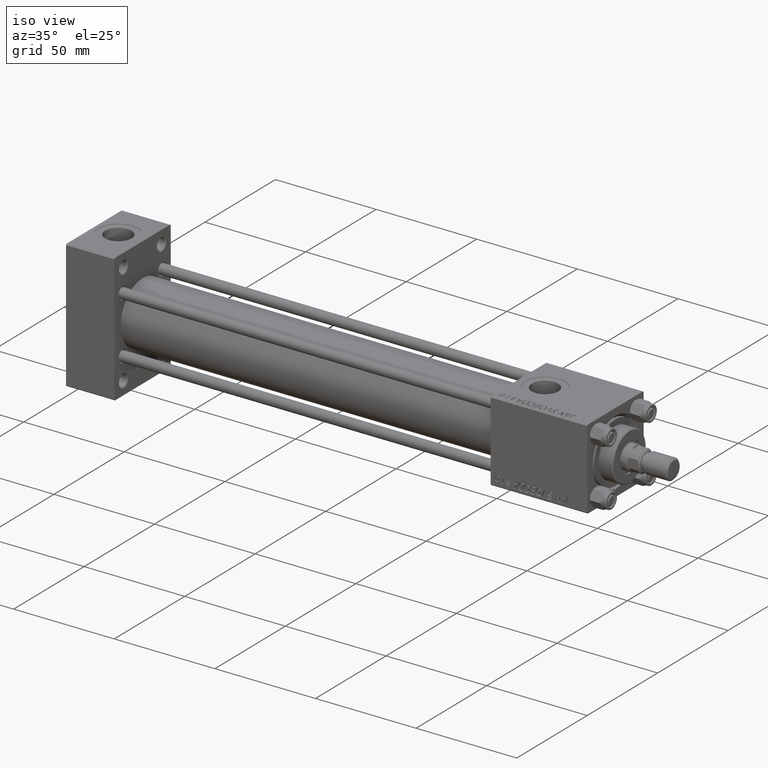
[diagram: clean part render]
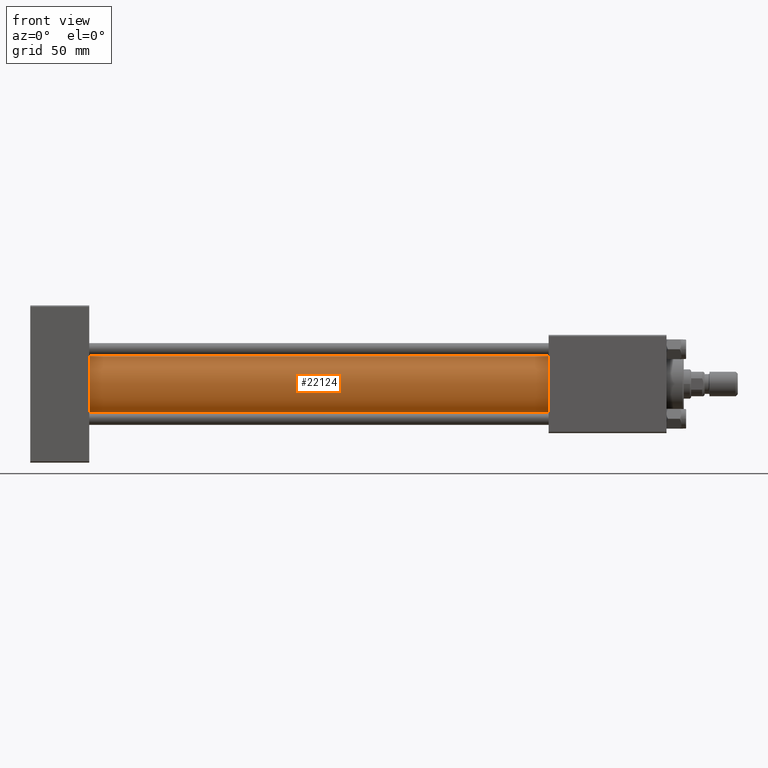
[diagram: tour spotlight — one face highlighted and labeled with its STEP entity id]
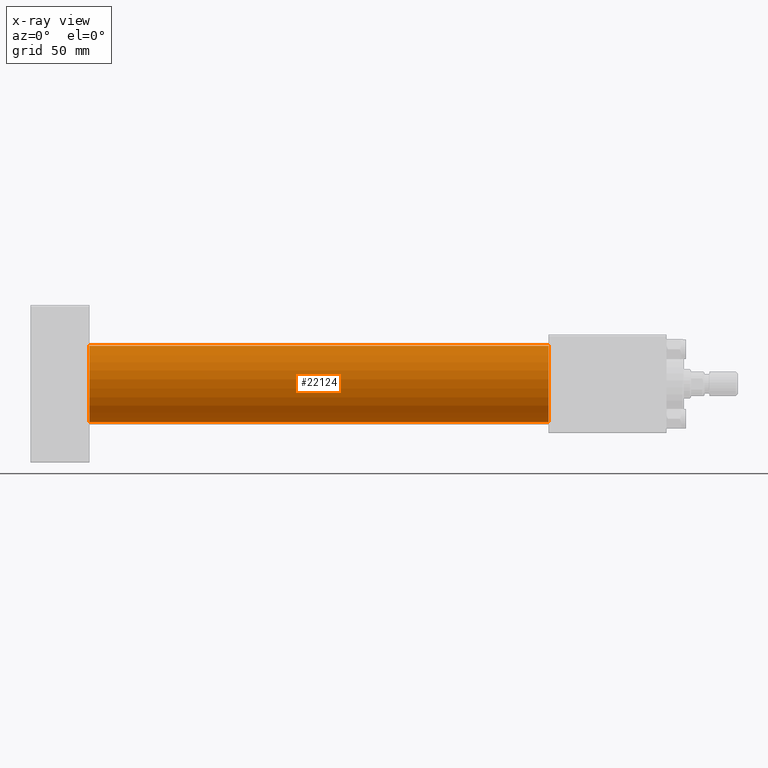
[diagram: x-ray of the same camera — body ghosted, this tour face saturated]
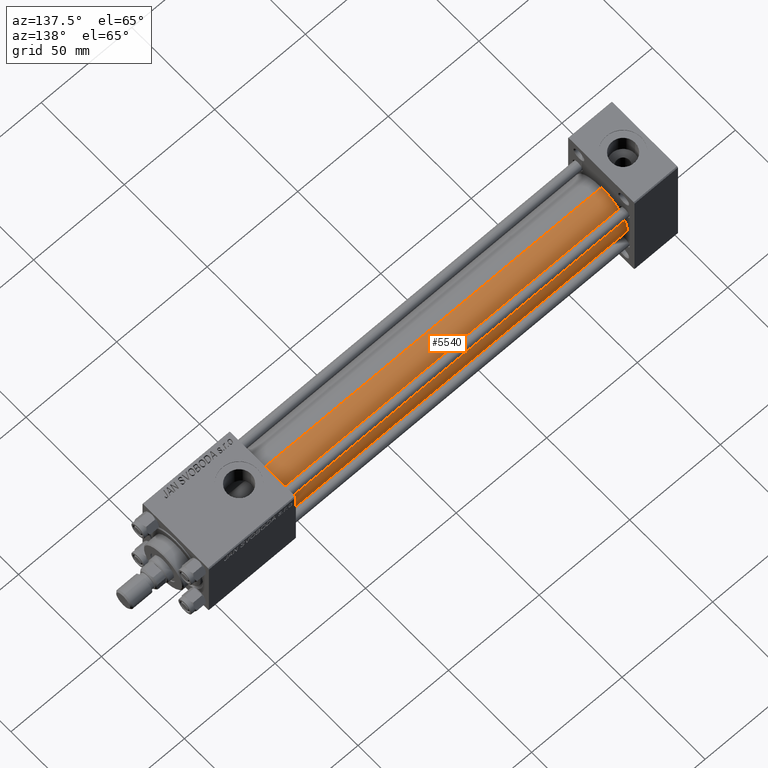
[diagram: tour spotlight — one face highlighted and labeled with its STEP entity id]
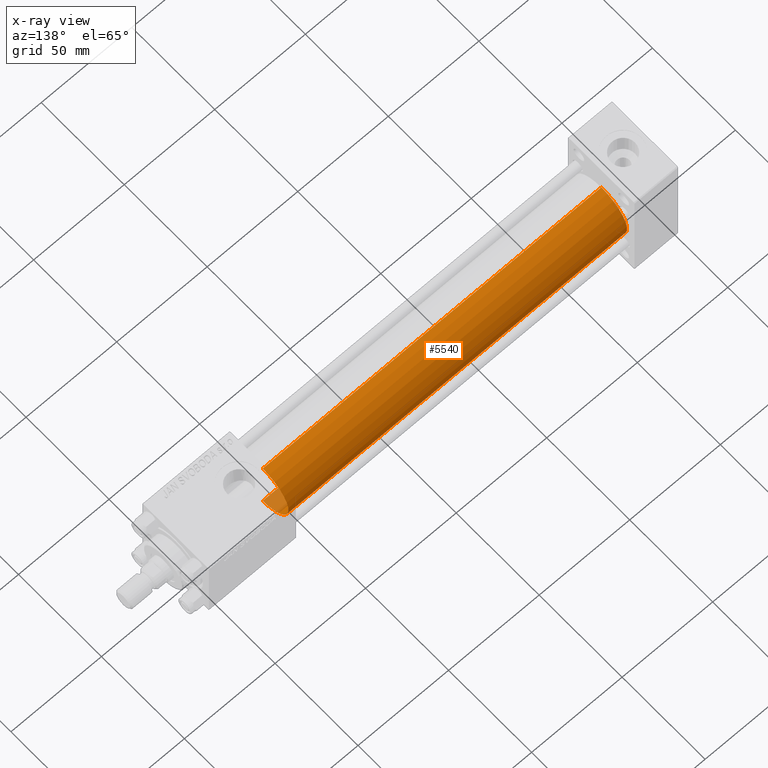
[diagram: x-ray of the same camera — body ghosted, this tour face saturated]
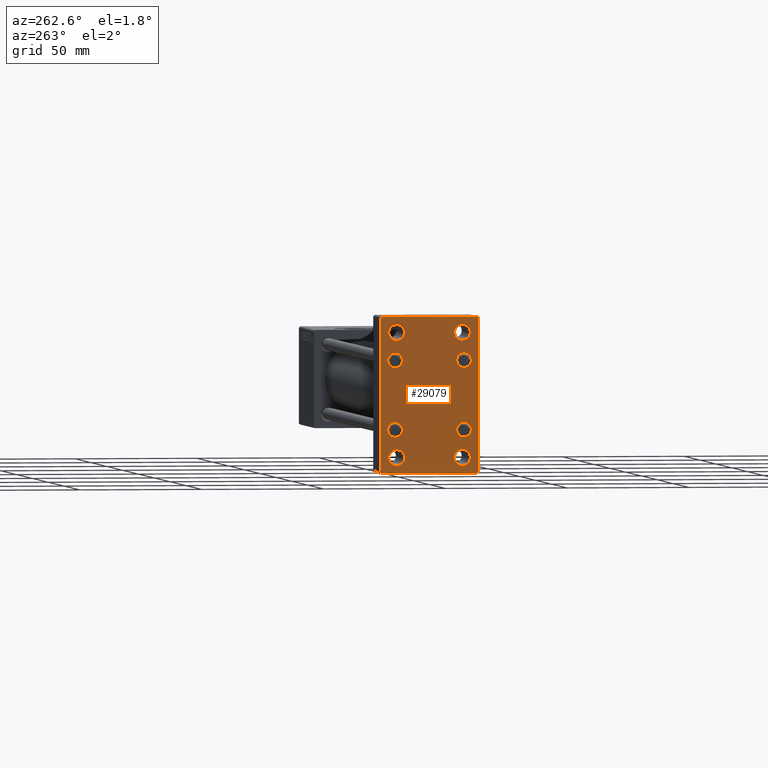
[diagram: tour spotlight — one face highlighted and labeled with its STEP entity id]
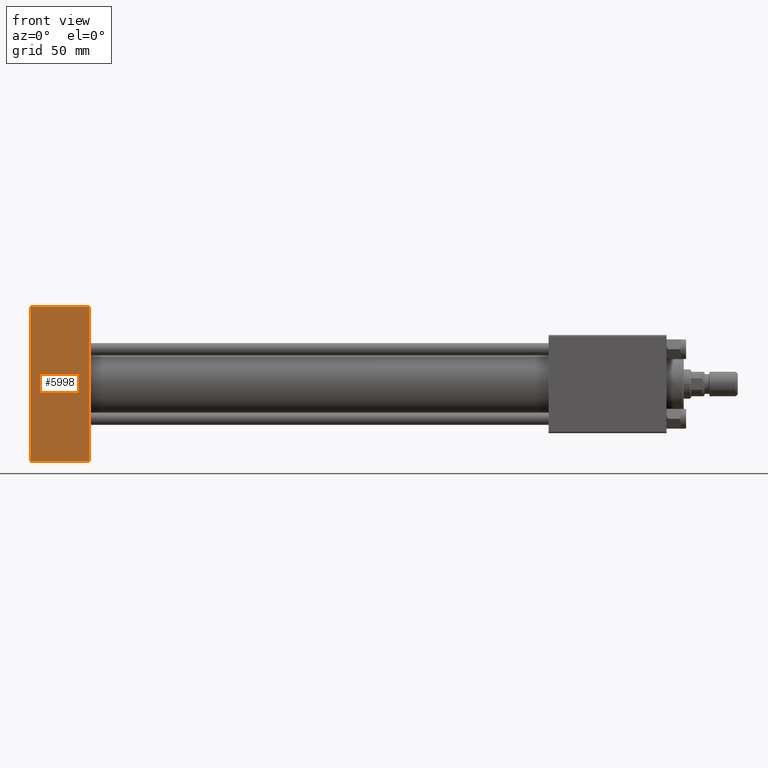
[diagram: tour spotlight — one face highlighted and labeled with its STEP entity id]
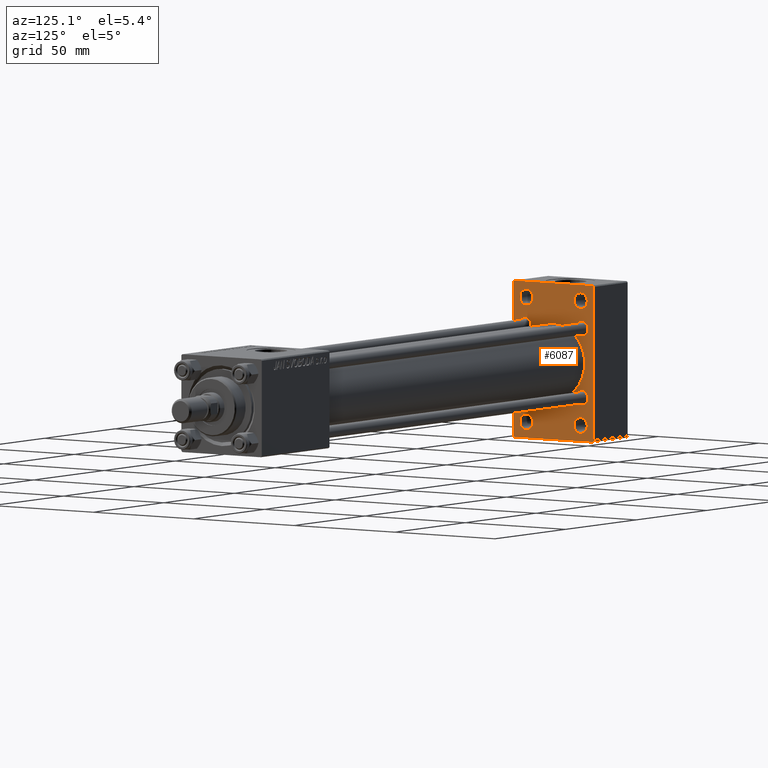
[diagram: tour spotlight — one face highlighted and labeled with its STEP entity id]
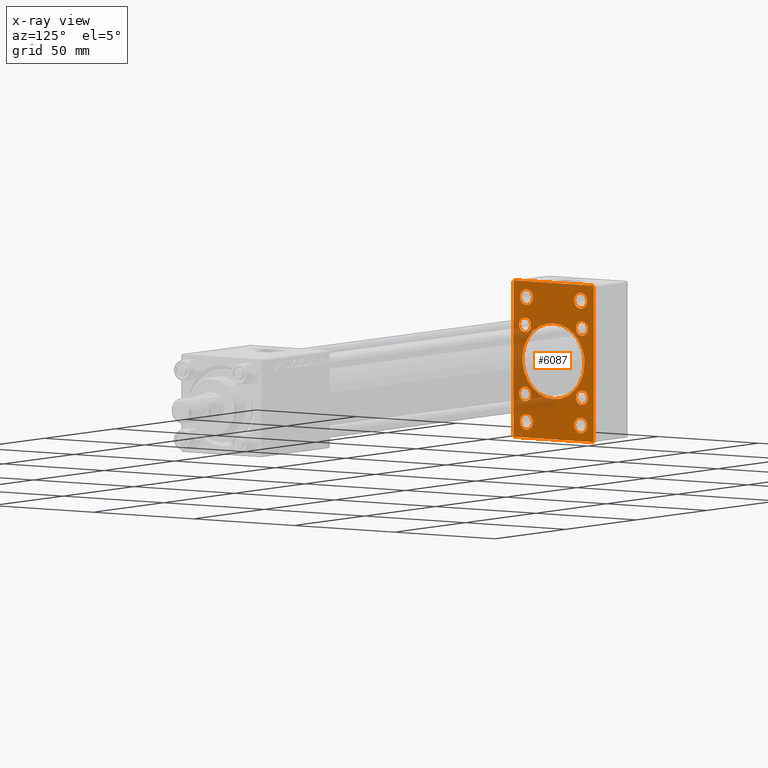
[diagram: x-ray of the same camera — body ghosted, this tour face saturated]
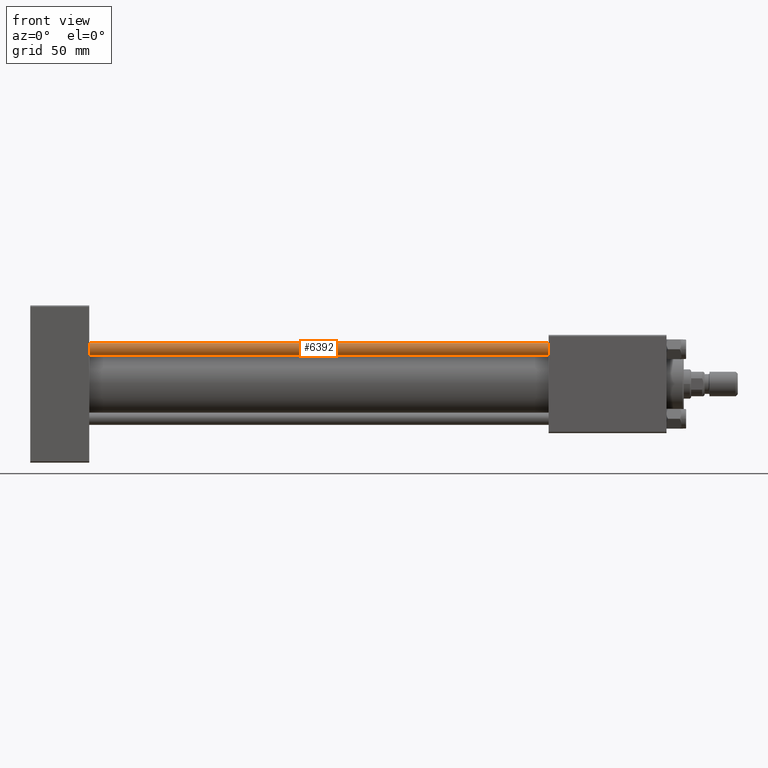
[diagram: tour spotlight — one face highlighted and labeled with its STEP entity id]
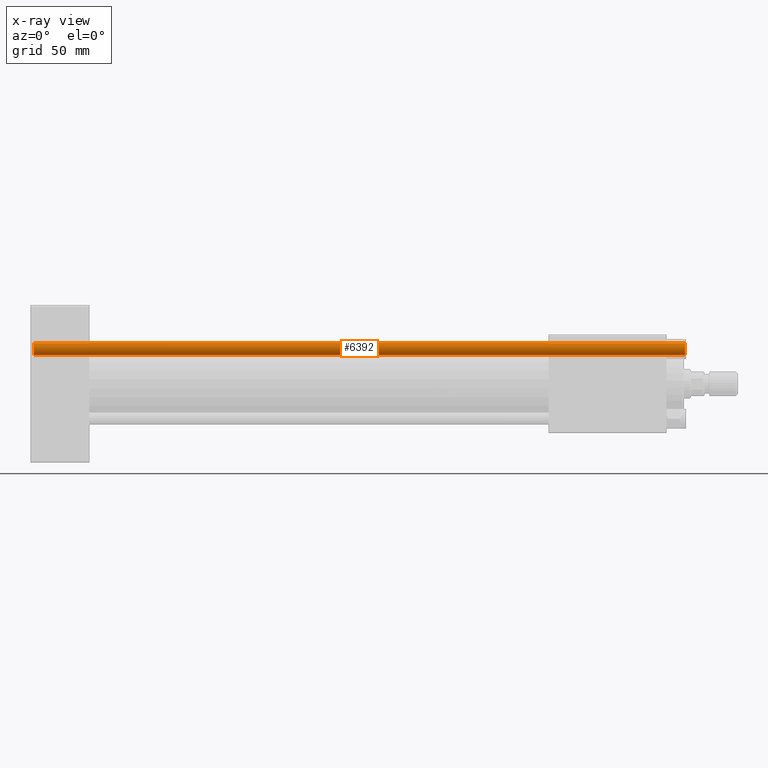
[diagram: x-ray of the same camera — body ghosted, this tour face saturated]
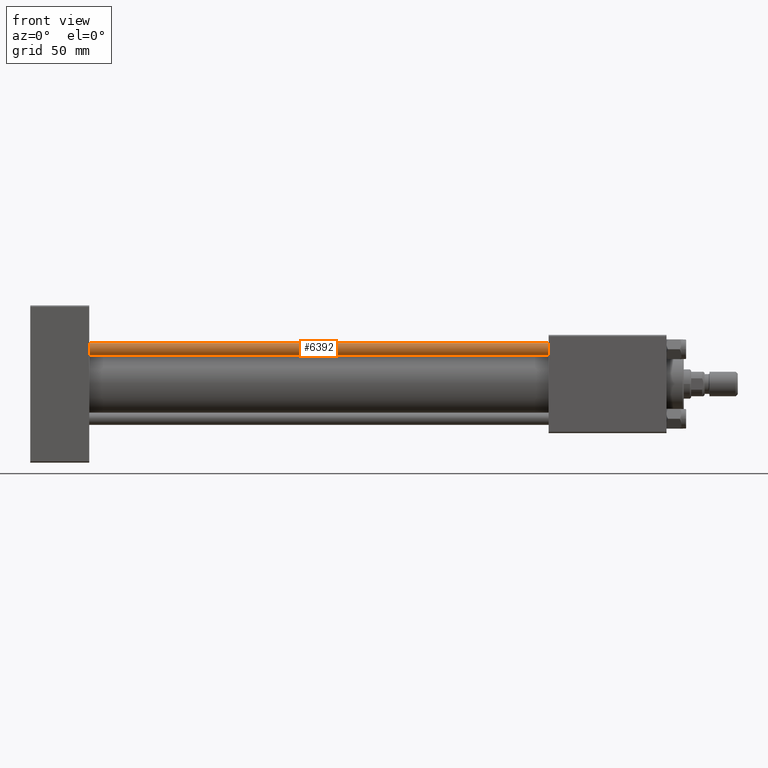
[diagram: tour spotlight — one face highlighted and labeled with its STEP entity id]
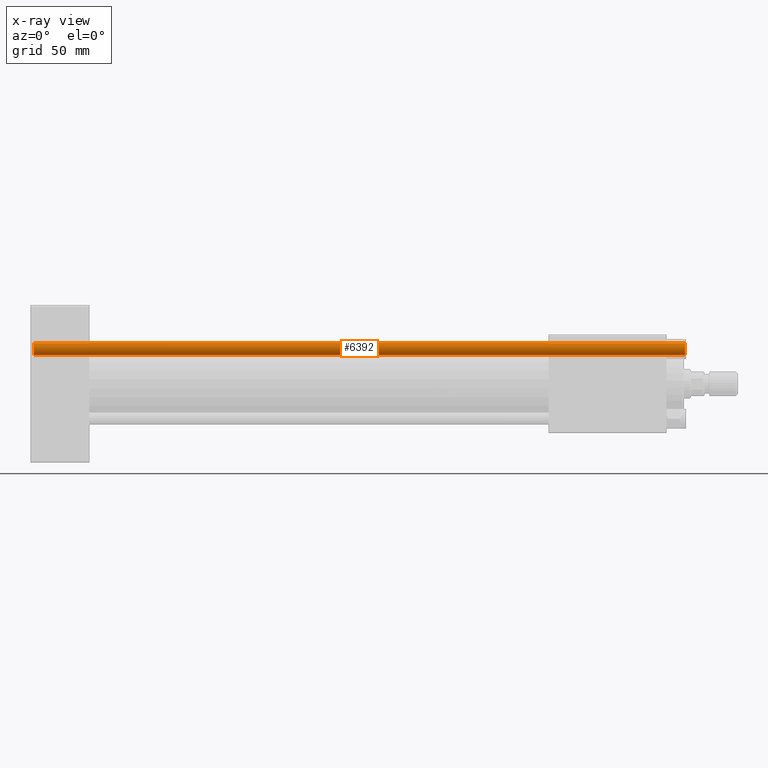
[diagram: x-ray of the same camera — body ghosted, this tour face saturated]
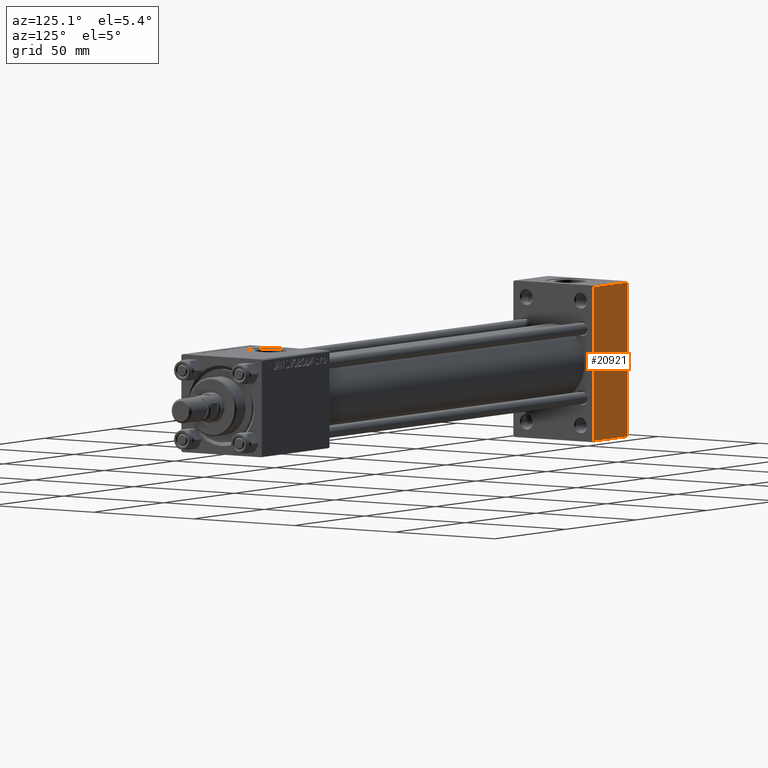
[diagram: tour spotlight — one face highlighted and labeled with its STEP entity id]
A machine part: a face-by-face anatomy tour. The part has 1149 B-rep faces; the first image is the clean iso view, then the 8 largest visible faces are spotlighted one at a time (largest first), each with its STEP entity span.

Face 1 — front view, entity #22124. An x-ray twin of the same camera follows (body ghosted, this face saturated) — the face is partly hidden behind the body. In plain terms, the highlighted cylindrical surface (partial cylindrical patch) has radius 15.5 mm, axis along (-1, -0, -0).
Definition (entity closure, byte-faithful):
#1131 = LINE ( 'NONE', #40843, #37651 ) ;
#1235 = ORIENTED_EDGE ( 'NONE', *, *, #33515, .F. ) ;
#2611 = DIRECTION ( 'NONE',  ( 0.000000000000000000, 0.000000000000000000, 1.000000000000000000 ) ) ;
#4381 = DIRECTION ( 'NONE',  ( 1.000000000000000000, 0.000000000000000000, 0.000000000000000000 ) ) ;
#6643 = VERTEX_POINT ( 'NONE', #9496 ) ;
#6890 = AXIS2_PLACEMENT_3D ( 'NONE', #11234, #18130, #2611 ) ;
#7951 = CARTESIAN_POINT ( 'NONE',  ( 23.99999999999999289, -2.602085213965210642E-15, 0.000000000000000000 ) ) ;
#8763 = ORIENTED_EDGE ( 'NONE', *, *, #13235, .T. ) ;
#9496 = CARTESIAN_POINT ( 'NONE',  ( 211.0000000000000000, -7.038826752868131828E-16, -15.50000000000000000 ) ) ;
#11234 = CARTESIAN_POINT ( 'NONE',  ( 211.0000000000000000, -2.602085213965210642E-15, 0.000000000000000000 ) ) ;
#12124 = DIRECTION ( 'NONE',  ( 1.000000000000000000, 0.000000000000000000, 0.000000000000000000 ) ) ;
#12989 = EDGE_CURVE ( 'NONE', #31094, #26923, #1131, .T. ) ;
#13235 = EDGE_CURVE ( 'NONE', #26923, #21350, #26221, .T. ) ;
#13674 = ORIENTED_EDGE ( 'NONE', *, *, #25583, .F. ) ;
#13701 = LINE ( 'NONE', #44288, #28336 ) ;
#14056 = AXIS2_PLACEMENT_3D ( 'NONE', #7951, #4381, #31631 ) ;
#15063 = CYLINDRICAL_SURFACE ( 'NONE', #6890, 15.50000000000000000 ) ;
#15141 = CIRCLE ( 'NONE', #46052, 15.50000000000000000 ) ;
#17403 = DIRECTION ( 'NONE',  ( -1.000000000000000000, -0.000000000000000000, -0.000000000000000000 ) ) ;
#18130 = DIRECTION ( 'NONE',  ( -1.000000000000000000, -0.000000000000000000, -0.000000000000000000 ) ) ;
#21350 = VERTEX_POINT ( 'NONE', #39244 ) ;
#22124 = ADVANCED_FACE ( 'NONE', ( #37496 ), #15063, .T. ) ;
#22650 = CARTESIAN_POINT ( 'NONE',  ( 23.99999999999999289, -2.602085213965210642E-15, 15.50000000000000000 ) ) ;
#25583 = EDGE_CURVE ( 'NONE', #31094, #6643, #15141, .T. ) ;
#26221 = CIRCLE ( 'NONE', #14056, 15.50000000000000000 ) ;
#26923 = VERTEX_POINT ( 'NONE', #22650 ) ;
#28164 = CARTESIAN_POINT ( 'NONE',  ( 211.0000000000000000, -2.602085213965210642E-15, 0.000000000000000000 ) ) ;
#28336 = VECTOR ( 'NONE', #36135, 1000.000000000000000 ) ;
#31094 = VERTEX_POINT ( 'NONE', #44214 ) ;
#31631 = DIRECTION ( 'NONE',  ( 0.000000000000000000, 0.000000000000000000, 1.000000000000000000 ) ) ;
#33515 = EDGE_CURVE ( 'NONE', #6643, #21350, #13701, .T. ) ;
#36135 = DIRECTION ( 'NONE',  ( -1.000000000000000000, -0.000000000000000000, -0.000000000000000000 ) ) ;
#37496 = FACE_OUTER_BOUND ( 'NONE', #45313, .T. ) ;
#37651 = VECTOR ( 'NONE', #17403, 1000.000000000000000 ) ;
#39244 = CARTESIAN_POINT ( 'NONE',  ( 23.99999999999999289, -7.038826752868131828E-16, -15.50000000000000000 ) ) ;
#40843 = CARTESIAN_POINT ( 'NONE',  ( 211.0000000000000000, -2.602085213965210642E-15, 15.50000000000000000 ) ) ;
#42458 = ORIENTED_EDGE ( 'NONE', *, *, #12989, .T. ) ;
#44214 = CARTESIAN_POINT ( 'NONE',  ( 211.0000000000000000, -2.602085213965210642E-15, 15.50000000000000000 ) ) ;
#44288 = CARTESIAN_POINT ( 'NONE',  ( 211.0000000000000000, -7.038826752868131828E-16, -15.50000000000000000 ) ) ;
#45313 = EDGE_LOOP ( 'NONE', ( #1235, #13674, #42458, #8763 ) ) ;
#46052 = AXIS2_PLACEMENT_3D ( 'NONE', #28164, #12124, #47551 ) ;
#47551 = DIRECTION ( 'NONE',  ( 0.000000000000000000, 0.000000000000000000, -1.000000000000000000 ) ) ;

Face 2 — auxiliary view, entity #5540. An x-ray twin of the same camera follows (body ghosted, this face saturated) — the face is partly hidden behind the body. In plain terms, the highlighted cylindrical surface (partial cylindrical patch) has radius 15.5 mm, axis along (-1, -0, -0).
Definition (entity closure, byte-faithful):
#1131 = LINE ( 'NONE', #40843, #37651 ) ;
#1531 = FACE_OUTER_BOUND ( 'NONE', #3449, .T. ) ;
#3449 = EDGE_LOOP ( 'NONE', ( #19190, #10040, #10068, #28151 ) ) ;
#5242 = DIRECTION ( 'NONE',  ( 1.000000000000000000, 0.000000000000000000, 0.000000000000000000 ) ) ;
#5540 = ADVANCED_FACE ( 'NONE', ( #1531 ), #16800, .T. ) ;
#6643 = VERTEX_POINT ( 'NONE', #9496 ) ;
#9414 = DIRECTION ( 'NONE',  ( 0.000000000000000000, 0.000000000000000000, 1.000000000000000000 ) ) ;
#9496 = CARTESIAN_POINT ( 'NONE',  ( 211.0000000000000000, -7.038826752868131828E-16, -15.50000000000000000 ) ) ;
#10040 = ORIENTED_EDGE ( 'NONE', *, *, #33515, .T. ) ;
#10068 = ORIENTED_EDGE ( 'NONE', *, *, #39414, .T. ) ;
#12989 = EDGE_CURVE ( 'NONE', #31094, #26923, #1131, .T. ) ;
#13701 = LINE ( 'NONE', #44288, #28336 ) ;
#16800 = CYLINDRICAL_SURFACE ( 'NONE', #40705, 15.50000000000000000 ) ;
#17403 = DIRECTION ( 'NONE',  ( -1.000000000000000000, -0.000000000000000000, -0.000000000000000000 ) ) ;
#18772 = CIRCLE ( 'NONE', #48081, 15.50000000000000000 ) ;
#19190 = ORIENTED_EDGE ( 'NONE', *, *, #41187, .F. ) ;
#21350 = VERTEX_POINT ( 'NONE', #39244 ) ;
#21471 = CARTESIAN_POINT ( 'NONE',  ( 211.0000000000000000, -2.602085213965210642E-15, 0.000000000000000000 ) ) ;
#22650 = CARTESIAN_POINT ( 'NONE',  ( 23.99999999999999289, -2.602085213965210642E-15, 15.50000000000000000 ) ) ;
#26923 = VERTEX_POINT ( 'NONE', #22650 ) ;
#26937 = AXIS2_PLACEMENT_3D ( 'NONE', #21471, #44669, #40596 ) ;
#28151 = ORIENTED_EDGE ( 'NONE', *, *, #12989, .F. ) ;
#28336 = VECTOR ( 'NONE', #36135, 1000.000000000000000 ) ;
#29397 = CARTESIAN_POINT ( 'NONE',  ( 23.99999999999999289, -2.602085213965210642E-15, 0.000000000000000000 ) ) ;
#31094 = VERTEX_POINT ( 'NONE', #44214 ) ;
#33515 = EDGE_CURVE ( 'NONE', #6643, #21350, #13701, .T. ) ;
#36135 = DIRECTION ( 'NONE',  ( -1.000000000000000000, -0.000000000000000000, -0.000000000000000000 ) ) ;
#36418 = DIRECTION ( 'NONE',  ( -1.000000000000000000, -0.000000000000000000, -0.000000000000000000 ) ) ;
#37651 = VECTOR ( 'NONE', #17403, 1000.000000000000000 ) ;
#38375 = CIRCLE ( 'NONE', #26937, 15.50000000000000000 ) ;
#39244 = CARTESIAN_POINT ( 'NONE',  ( 23.99999999999999289, -7.038826752868131828E-16, -15.50000000000000000 ) ) ;
#39414 = EDGE_CURVE ( 'NONE', #21350, #26923, #18772, .T. ) ;
#39994 = CARTESIAN_POINT ( 'NONE',  ( 211.0000000000000000, -2.602085213965210642E-15, 0.000000000000000000 ) ) ;
#40596 = DIRECTION ( 'NONE',  ( 0.000000000000000000, 0.000000000000000000, -1.000000000000000000 ) ) ;
#40705 = AXIS2_PLACEMENT_3D ( 'NONE', #39994, #36418, #9414 ) ;
#40843 = CARTESIAN_POINT ( 'NONE',  ( 211.0000000000000000, -2.602085213965210642E-15, 15.50000000000000000 ) ) ;
#41187 = EDGE_CURVE ( 'NONE', #6643, #31094, #38375, .T. ) ;
#44214 = CARTESIAN_POINT ( 'NONE',  ( 211.0000000000000000, -2.602085213965210642E-15, 15.50000000000000000 ) ) ;
#44288 = CARTESIAN_POINT ( 'NONE',  ( 211.0000000000000000, -7.038826752868131828E-16, -15.50000000000000000 ) ) ;
#44669 = DIRECTION ( 'NONE',  ( 1.000000000000000000, 0.000000000000000000, 0.000000000000000000 ) ) ;
#44707 = DIRECTION ( 'NONE',  ( 0.000000000000000000, 0.000000000000000000, 1.000000000000000000 ) ) ;
#48081 = AXIS2_PLACEMENT_3D ( 'NONE', #29397, #5242, #44707 ) ;

Face 3 — auxiliary view, entity #29079. In plain terms, the highlighted planar face has unit normal (-1, 0, 0).
Definition (entity closure, byte-faithful):
#43 = AXIS2_PLACEMENT_3D ( 'NONE', #32418, #24780, #20463 ) ;
#233 = DIRECTION ( 'NONE',  ( 0.000000000000000000, 0.000000000000000000, 1.000000000000000000 ) ) ;
#366 = ORIENTED_EDGE ( 'NONE', *, *, #23460, .F. ) ;
#422 = CARTESIAN_POINT ( 'NONE',  ( 0.000000000000000000, 14.14999999999999858, -17.15000000000000568 ) ) ;
#436 = ORIENTED_EDGE ( 'NONE', *, *, #8456, .T. ) ;
#493 = CARTESIAN_POINT ( 'NONE',  ( 0.000000000000000000, 14.14999999999999858, -11.14999999999999680 ) ) ;
#840 = CARTESIAN_POINT ( 'NONE',  ( 0.000000000000000000, -19.49999999999999645, -31.99999999999999289 ) ) ;
#944 = ORIENTED_EDGE ( 'NONE', *, *, #25978, .T. ) ;
#1120 = ORIENTED_EDGE ( 'NONE', *, *, #19446, .T. ) ;
#1331 = CARTESIAN_POINT ( 'NONE',  ( 0.000000000000000000, 13.50000000000000178, -25.50000000000000000 ) ) ;
#1365 = ORIENTED_EDGE ( 'NONE', *, *, #14093, .T. ) ;
#1388 = AXIS2_PLACEMENT_3D ( 'NONE', #19140, #50221, #18635 ) ;
#1638 = EDGE_CURVE ( 'NONE', #19340, #28245, #8045, .T. ) ;
#1755 = DIRECTION ( 'NONE',  ( 0.000000000000000000, 0.000000000000000000, 1.000000000000000000 ) ) ;
#2181 = CIRCLE ( 'NONE', #1388, 3.249999999999947597 ) ;
#2262 = ORIENTED_EDGE ( 'NONE', *, *, #36179, .T. ) ;
#2616 = EDGE_LOOP ( 'NONE', ( #7563, #48784 ) ) ;
#2625 = CARTESIAN_POINT ( 'NONE',  ( 0.000000000000000000, 19.99999999999999645, 31.50000000000000000 ) ) ;
#2725 = VECTOR ( 'NONE', #12748, 1000.000000000000000 ) ;
#2833 = FACE_OUTER_BOUND ( 'NONE', #45142, .T. ) ;
#3080 = DIRECTION ( 'NONE',  ( 1.000000000000000000, 0.000000000000000000, 0.000000000000000000 ) ) ;
#3088 = FACE_BOUND ( 'NONE', #21943, .T. ) ;
#3169 = CARTESIAN_POINT ( 'NONE',  ( 0.000000000000000000, 14.14999999999999858, 14.15000000000000036 ) ) ;
#3394 = DIRECTION ( 'NONE',  ( 0.000000000000000000, 0.000000000000000000, 1.000000000000000000 ) ) ;
#3553 = DIRECTION ( 'NONE',  ( 1.000000000000000000, 0.000000000000000000, 0.000000000000000000 ) ) ;
#3555 = CARTESIAN_POINT ( 'NONE',  ( 0.000000000000000000, 19.99999999999999645, -31.99999999999999289 ) ) ;
#4657 = CARTESIAN_POINT ( 'NONE',  ( 0.000000000000000000, 13.50000000000000178, -28.74999999999994671 ) ) ;
#5325 = EDGE_LOOP ( 'NONE', ( #39900, #13962 ) ) ;
#5555 = DIRECTION ( 'NONE',  ( 1.000000000000000000, 0.000000000000000000, 0.000000000000000000 ) ) ;
#5816 = CARTESIAN_POINT ( 'NONE',  ( 0.000000000000000000, -13.49999999999999822, -22.25000000000004974 ) ) ;
#5967 = CIRCLE ( 'NONE', #13271, 3.000000000000000888 ) ;
#6190 = ORIENTED_EDGE ( 'NONE', *, *, #1638, .T. ) ;
#6442 = CIRCLE ( 'NONE', #43, 3.249999999999947597 ) ;
#6623 = EDGE_CURVE ( 'NONE', #38908, #28781, #6442, .T. ) ;
#7563 = ORIENTED_EDGE ( 'NONE', *, *, #41126, .T. ) ;
#7586 = LINE ( 'NONE', #46059, #30390 ) ;
#7994 = DIRECTION ( 'NONE',  ( 1.000000000000000000, 0.000000000000000000, 0.000000000000000000 ) ) ;
#8045 = CIRCLE ( 'NONE', #13710, 3.249999999999947597 ) ;
#8070 = VERTEX_POINT ( 'NONE', #8129 ) ;
#8129 = CARTESIAN_POINT ( 'NONE',  ( 0.000000000000000000, -14.14999999999999503, 11.15000000000000213 ) ) ;
#8163 = EDGE_CURVE ( 'NONE', #15409, #8950, #48022, .T. ) ;
#8303 = CARTESIAN_POINT ( 'NONE',  ( 0.000000000000000000, -14.14999999999999503, -11.15000000000000036 ) ) ;
#8456 = EDGE_CURVE ( 'NONE', #33414, #13147, #25815, .T. ) ;
#8856 = CIRCLE ( 'NONE', #20238, 3.000000000000004441 ) ;
#8950 = VERTEX_POINT ( 'NONE', #19450 ) ;
#8964 = DIRECTION ( 'NONE',  ( 0.000000000000000000, 0.000000000000000000, 1.000000000000000000 ) ) ;
#9203 = EDGE_CURVE ( 'NONE', #8950, #15409, #37405, .T. ) ;
#9233 = FACE_BOUND ( 'NONE', #48836, .T. ) ;
#9940 = CARTESIAN_POINT ( 'NONE',  ( 0.000000000000000000, -25.75000000000026645, -25.74999999999955591 ) ) ;
#10017 = AXIS2_PLACEMENT_3D ( 'NONE', #16381, #7994, #31671 ) ;
#10459 = CARTESIAN_POINT ( 'NONE',  ( 0.000000000000000000, 19.99999999999999645, 32.00000000000000000 ) ) ;
#10467 = EDGE_CURVE ( 'NONE', #24380, #36776, #38441, .T. ) ;
#10628 = VERTEX_POINT ( 'NONE', #493 ) ;
#11552 = EDGE_CURVE ( 'NONE', #44424, #10628, #20905, .T. ) ;
#11748 = CARTESIAN_POINT ( 'NONE',  ( 0.000000000000000000, 14.14999999999999858, 11.14999999999999858 ) ) ;
#12541 = EDGE_CURVE ( 'NONE', #16003, #37454, #46581, .T. ) ;
#12748 = DIRECTION ( 'NONE',  ( -0.000000000000000000, -0.7071067811865524577, -0.7071067811865426878 ) ) ;
#12929 = CARTESIAN_POINT ( 'NONE',  ( 0.000000000000000000, -14.14999999999999503, 14.15000000000000391 ) ) ;
#13147 = VERTEX_POINT ( 'NONE', #2625 ) ;
#13271 = AXIS2_PLACEMENT_3D ( 'NONE', #3169, #19203, #46718 ) ;
#13710 = AXIS2_PLACEMENT_3D ( 'NONE', #1331, #32641, #8964 ) ;
#13873 = DIRECTION ( 'NONE',  ( 0.000000000000000000, 0.7071067811865474617, -0.7071067811865474617 ) ) ;
#13962 = ORIENTED_EDGE ( 'NONE', *, *, #11552, .T. ) ;
#14093 = EDGE_CURVE ( 'NONE', #46828, #24380, #38994, .T. ) ;
#14202 = CARTESIAN_POINT ( 'NONE',  ( 0.000000000000000000, -13.49999999999999822, 25.50000000000000000 ) ) ;
#14642 = EDGE_CURVE ( 'NONE', #15534, #15009, #5967, .T. ) ;
#14701 = EDGE_CURVE ( 'NONE', #31105, #38330, #34413, .T. ) ;
#14770 = CIRCLE ( 'NONE', #24529, 3.000000000000000888 ) ;
#14788 = PLANE ( 'NONE',  #29889 ) ;
#15009 = VERTEX_POINT ( 'NONE', #11748 ) ;
#15039 = DIRECTION ( 'NONE',  ( -1.000000000000000000, 0.000000000000000000, -0.000000000000000000 ) ) ;
#15255 = CARTESIAN_POINT ( 'NONE',  ( 0.000000000000000000, 19.49999999999999645, 32.00000000000000000 ) ) ;
#15390 = CARTESIAN_POINT ( 'NONE',  ( 0.000000000000000000, -14.14999999999999503, 14.15000000000000391 ) ) ;
#15409 = VERTEX_POINT ( 'NONE', #5816 ) ;
#15520 = DIRECTION ( 'NONE',  ( 1.000000000000000000, 0.000000000000000000, 0.000000000000000000 ) ) ;
#15534 = VERTEX_POINT ( 'NONE', #22585 ) ;
#15755 = DIRECTION ( 'NONE',  ( 0.000000000000000000, 0.000000000000000000, 1.000000000000000000 ) ) ;
#15813 = CARTESIAN_POINT ( 'NONE',  ( 0.000000000000000000, 19.49999999999999645, -31.99999999999999289 ) ) ;
#16003 = VERTEX_POINT ( 'NONE', #33366 ) ;
#16381 = CARTESIAN_POINT ( 'NONE',  ( 0.000000000000000000, -14.14999999999999503, -14.15000000000000391 ) ) ;
#16418 = CIRCLE ( 'NONE', #33461, 3.000000000000000888 ) ;
#16518 = DIRECTION ( 'NONE',  ( 1.000000000000000000, 0.000000000000000000, 0.000000000000000000 ) ) ;
#16855 = CIRCLE ( 'NONE', #28269, 3.000000000000004441 ) ;
#17415 = CARTESIAN_POINT ( 'NONE',  ( 0.000000000000000000, -20.00000000000000355, 31.50000000000000711 ) ) ;
#17503 = AXIS2_PLACEMENT_3D ( 'NONE', #34868, #3553, #233 ) ;
#17549 = CARTESIAN_POINT ( 'NONE',  ( 0.000000000000000000, -20.00000000000000355, 32.00000000000000000 ) ) ;
#18200 = VERTEX_POINT ( 'NONE', #17415 ) ;
#18338 = CARTESIAN_POINT ( 'NONE',  ( 0.000000000000000000, 14.14999999999999858, -14.15000000000000036 ) ) ;
#18517 = ORIENTED_EDGE ( 'NONE', *, *, #14701, .T. ) ;
#18635 = DIRECTION ( 'NONE',  ( 0.000000000000000000, 0.000000000000000000, 1.000000000000000000 ) ) ;
#18684 = CARTESIAN_POINT ( 'NONE',  ( -0.000000000000000000, 25.75000000000000000, 25.75000000000000000 ) ) ;
#18761 = VECTOR ( 'NONE', #50166, 1000.000000000000000 ) ;
#19140 = CARTESIAN_POINT ( 'NONE',  ( 0.000000000000000000, -13.49999999999999822, 25.50000000000000000 ) ) ;
#19203 = DIRECTION ( 'NONE',  ( 1.000000000000000000, 0.000000000000000000, 0.000000000000000000 ) ) ;
#19340 = VERTEX_POINT ( 'NONE', #4657 ) ;
#19446 = EDGE_CURVE ( 'NONE', #13147, #46828, #30309, .T. ) ;
#19450 = CARTESIAN_POINT ( 'NONE',  ( 0.000000000000000000, -13.49999999999999822, -28.74999999999994671 ) ) ;
#19533 = AXIS2_PLACEMENT_3D ( 'NONE', #38749, #42838, #49961 ) ;
#19974 = DIRECTION ( 'NONE',  ( 1.000000000000000000, 0.000000000000000000, 0.000000000000000000 ) ) ;
#20238 = AXIS2_PLACEMENT_3D ( 'NONE', #18338, #15520, #38199 ) ;
#20325 = DIRECTION ( 'NONE',  ( 0.000000000000000000, 0.000000000000000000, 1.000000000000000000 ) ) ;
#20463 = DIRECTION ( 'NONE',  ( 0.000000000000000000, 0.000000000000000000, 1.000000000000000000 ) ) ;
#20905 = CIRCLE ( 'NONE', #33901, 3.000000000000004441 ) ;
#21744 = CARTESIAN_POINT ( 'NONE',  ( 0.000000000000000000, 13.50000000000000178, 28.74999999999994671 ) ) ;
#21869 = CARTESIAN_POINT ( 'NONE',  ( 0.000000000000000000, -14.14999999999999503, 17.15000000000000924 ) ) ;
#21943 = EDGE_LOOP ( 'NONE', ( #2262, #6190 ) ) ;
#22176 = FACE_BOUND ( 'NONE', #23350, .T. ) ;
#22480 = EDGE_CURVE ( 'NONE', #28781, #38908, #44369, .T. ) ;
#22585 = CARTESIAN_POINT ( 'NONE',  ( 0.000000000000000000, 14.14999999999999858, 17.15000000000000568 ) ) ;
#22681 = AXIS2_PLACEMENT_3D ( 'NONE', #41792, #3080, #34143 ) ;
#22768 = ORIENTED_EDGE ( 'NONE', *, *, #12541, .T. ) ;
#23350 = EDGE_LOOP ( 'NONE', ( #39633, #18517 ) ) ;
#23460 = EDGE_CURVE ( 'NONE', #33414, #46545, #33151, .T. ) ;
#23893 = CARTESIAN_POINT ( 'NONE',  ( 0.000000000000000000, -19.50000000000001776, 32.00000000000000000 ) ) ;
#23988 = DIRECTION ( 'NONE',  ( 0.000000000000000000, 0.000000000000000000, 1.000000000000000000 ) ) ;
#24380 = VERTEX_POINT ( 'NONE', #15813 ) ;
#24529 = AXIS2_PLACEMENT_3D ( 'NONE', #41595, #41091, #23988 ) ;
#24780 = DIRECTION ( 'NONE',  ( 1.000000000000000000, 0.000000000000000000, 0.000000000000000000 ) ) ;
#24830 = VECTOR ( 'NONE', #38985, 1000.000000000000000 ) ;
#25047 = CARTESIAN_POINT ( 'NONE',  ( 0.000000000000000000, -20.00000000000000355, -31.49999999999997158 ) ) ;
#25815 = LINE ( 'NONE', #18684, #35789 ) ;
#25931 = CARTESIAN_POINT ( 'NONE',  ( 0.000000000000000000, 13.50000000000000178, 22.25000000000004974 ) ) ;
#25978 = EDGE_CURVE ( 'NONE', #37454, #16003, #2181, .T. ) ;
#27172 = VECTOR ( 'NONE', #41051, 1000.000000000000000 ) ;
#27850 = EDGE_LOOP ( 'NONE', ( #32226, #42393 ) ) ;
#28135 = EDGE_CURVE ( 'NONE', #38330, #31105, #16855, .T. ) ;
#28245 = VERTEX_POINT ( 'NONE', #33574 ) ;
#28269 = AXIS2_PLACEMENT_3D ( 'NONE', #45927, #42111, #3394 ) ;
#28781 = VERTEX_POINT ( 'NONE', #21744 ) ;
#29079 = ADVANCED_FACE ( 'NONE', ( #45128, #9233, #36485, #3088, #49452, #22176, #30312, #46377, #2833 ), #14788, .T. ) ;
#29277 = ORIENTED_EDGE ( 'NONE', *, *, #8163, .T. ) ;
#29324 = EDGE_CURVE ( 'NONE', #18200, #35116, #44818, .T. ) ;
#29488 = ORIENTED_EDGE ( 'NONE', *, *, #41351, .T. ) ;
#29884 = ORIENTED_EDGE ( 'NONE', *, *, #14642, .T. ) ;
#29889 = AXIS2_PLACEMENT_3D ( 'NONE', #45378, #15039, #34650 ) ;
#30220 = VERTEX_POINT ( 'NONE', #21869 ) ;
#30309 = LINE ( 'NONE', #10459, #27172 ) ;
#30312 = FACE_BOUND ( 'NONE', #5325, .T. ) ;
#30390 = VECTOR ( 'NONE', #35095, 1000.000000000000000 ) ;
#31105 = VERTEX_POINT ( 'NONE', #31983 ) ;
#31430 = DIRECTION ( 'NONE',  ( 0.000000000000000000, 0.000000000000000000, 1.000000000000000000 ) ) ;
#31671 = DIRECTION ( 'NONE',  ( 0.000000000000000000, 0.000000000000000000, 1.000000000000000000 ) ) ;
#31813 = CARTESIAN_POINT ( 'NONE',  ( 0.000000000000000000, -13.49999999999999822, -25.50000000000000000 ) ) ;
#31983 = CARTESIAN_POINT ( 'NONE',  ( 0.000000000000000000, -14.14999999999999503, -17.15000000000000924 ) ) ;
#32226 = ORIENTED_EDGE ( 'NONE', *, *, #22480, .T. ) ;
#32255 = ORIENTED_EDGE ( 'NONE', *, *, #9203, .T. ) ;
#32418 = CARTESIAN_POINT ( 'NONE',  ( 0.000000000000000000, 13.50000000000000178, 25.50000000000000000 ) ) ;
#32641 = DIRECTION ( 'NONE',  ( 1.000000000000000000, 0.000000000000000000, 0.000000000000000000 ) ) ;
#33151 = LINE ( 'NONE', #48715, #24830 ) ;
#33366 = CARTESIAN_POINT ( 'NONE',  ( 0.000000000000000000, -13.49999999999999822, 28.74999999999994671 ) ) ;
#33414 = VERTEX_POINT ( 'NONE', #15255 ) ;
#33461 = AXIS2_PLACEMENT_3D ( 'NONE', #15390, #19974, #31430 ) ;
#33555 = ORIENTED_EDGE ( 'NONE', *, *, #50036, .T. ) ;
#33574 = CARTESIAN_POINT ( 'NONE',  ( 0.000000000000000000, 13.50000000000000178, -22.25000000000004974 ) ) ;
#33901 = AXIS2_PLACEMENT_3D ( 'NONE', #43284, #43026, #15755 ) ;
#34143 = DIRECTION ( 'NONE',  ( 0.000000000000000000, 0.000000000000000000, 1.000000000000000000 ) ) ;
#34413 = CIRCLE ( 'NONE', #10017, 3.000000000000004441 ) ;
#34476 = AXIS2_PLACEMENT_3D ( 'NONE', #12929, #5555, #20325 ) ;
#34650 = DIRECTION ( 'NONE',  ( -0.000000000000000000, 0.000000000000000000, 1.000000000000000000 ) ) ;
#34679 = EDGE_CURVE ( 'NONE', #10628, #44424, #8856, .T. ) ;
#34868 = CARTESIAN_POINT ( 'NONE',  ( 0.000000000000000000, 13.50000000000000178, 25.50000000000000000 ) ) ;
#35095 = DIRECTION ( 'NONE',  ( -0.000000000000000000, 0.7071067811865426878, 0.7071067811865524577 ) ) ;
#35116 = VERTEX_POINT ( 'NONE', #25047 ) ;
#35789 = VECTOR ( 'NONE', #13873, 1000.000000000000114 ) ;
#36179 = EDGE_CURVE ( 'NONE', #28245, #19340, #36568, .T. ) ;
#36344 = ORIENTED_EDGE ( 'NONE', *, *, #29324, .F. ) ;
#36419 = DIRECTION ( 'NONE',  ( 0.000000000000000000, 0.000000000000000000, -1.000000000000000000 ) ) ;
#36485 = FACE_BOUND ( 'NONE', #43196, .T. ) ;
#36568 = CIRCLE ( 'NONE', #22681, 3.249999999999947597 ) ;
#36776 = VERTEX_POINT ( 'NONE', #840 ) ;
#37405 = CIRCLE ( 'NONE', #19533, 3.249999999999947597 ) ;
#37454 = VERTEX_POINT ( 'NONE', #37859 ) ;
#37859 = CARTESIAN_POINT ( 'NONE',  ( 0.000000000000000000, -13.49999999999999822, 22.25000000000004974 ) ) ;
#38199 = DIRECTION ( 'NONE',  ( 0.000000000000000000, 0.000000000000000000, 1.000000000000000000 ) ) ;
#38330 = VERTEX_POINT ( 'NONE', #8303 ) ;
#38441 = LINE ( 'NONE', #3555, #18761 ) ;
#38546 = ORIENTED_EDGE ( 'NONE', *, *, #10467, .T. ) ;
#38749 = CARTESIAN_POINT ( 'NONE',  ( 0.000000000000000000, -13.49999999999999822, -25.50000000000000000 ) ) ;
#38908 = VERTEX_POINT ( 'NONE', #25931 ) ;
#38985 = DIRECTION ( 'NONE',  ( 0.000000000000000000, -1.000000000000000000, 0.000000000000000000 ) ) ;
#38994 = LINE ( 'NONE', #47666, #2725 ) ;
#39097 = CARTESIAN_POINT ( 'NONE',  ( 0.000000000000000000, 19.99999999999999645, -31.50000000000000000 ) ) ;
#39633 = ORIENTED_EDGE ( 'NONE', *, *, #28135, .T. ) ;
#39900 = ORIENTED_EDGE ( 'NONE', *, *, #34679, .T. ) ;
#41031 = VECTOR ( 'NONE', #41032, 1000.000000000000000 ) ;
#41032 = DIRECTION ( 'NONE',  ( 0.000000000000000000, -0.7071067811865378028, 0.7071067811865573427 ) ) ;
#41051 = DIRECTION ( 'NONE',  ( 0.000000000000000000, 0.000000000000000000, -1.000000000000000000 ) ) ;
#41091 = DIRECTION ( 'NONE',  ( 1.000000000000000000, 0.000000000000000000, 0.000000000000000000 ) ) ;
#41126 = EDGE_CURVE ( 'NONE', #30220, #8070, #16418, .T. ) ;
#41351 = EDGE_CURVE ( 'NONE', #15009, #15534, #14770, .T. ) ;
#41595 = CARTESIAN_POINT ( 'NONE',  ( 0.000000000000000000, 14.14999999999999858, 14.15000000000000036 ) ) ;
#41672 = AXIS2_PLACEMENT_3D ( 'NONE', #14202, #45286, #1755 ) ;
#41792 = CARTESIAN_POINT ( 'NONE',  ( 0.000000000000000000, 13.50000000000000178, -25.50000000000000000 ) ) ;
#42013 = ORIENTED_EDGE ( 'NONE', *, *, #45543, .T. ) ;
#42111 = DIRECTION ( 'NONE',  ( 1.000000000000000000, 0.000000000000000000, 0.000000000000000000 ) ) ;
#42393 = ORIENTED_EDGE ( 'NONE', *, *, #6623, .T. ) ;
#42838 = DIRECTION ( 'NONE',  ( 1.000000000000000000, 0.000000000000000000, 0.000000000000000000 ) ) ;
#43026 = DIRECTION ( 'NONE',  ( 1.000000000000000000, 0.000000000000000000, 0.000000000000000000 ) ) ;
#43196 = EDGE_LOOP ( 'NONE', ( #29277, #32255 ) ) ;
#43284 = CARTESIAN_POINT ( 'NONE',  ( 0.000000000000000000, 14.14999999999999858, -14.15000000000000036 ) ) ;
#43455 = CIRCLE ( 'NONE', #34476, 3.000000000000000888 ) ;
#44369 = CIRCLE ( 'NONE', #17503, 3.249999999999947597 ) ;
#44424 = VERTEX_POINT ( 'NONE', #422 ) ;
#44476 = VECTOR ( 'NONE', #36419, 1000.000000000000000 ) ;
#44818 = LINE ( 'NONE', #17549, #44476 ) ;
#44857 = LINE ( 'NONE', #9940, #41031 ) ;
#45128 = FACE_BOUND ( 'NONE', #27850, .T. ) ;
#45142 = EDGE_LOOP ( 'NONE', ( #1120, #1365, #38546, #33555, #36344, #42013, #366, #436 ) ) ;
#45286 = DIRECTION ( 'NONE',  ( 1.000000000000000000, 0.000000000000000000, 0.000000000000000000 ) ) ;
#45378 = CARTESIAN_POINT ( 'NONE',  ( 0.000000000000000000, 0.000000000000000000, 0.000000000000000000 ) ) ;
#45543 = EDGE_CURVE ( 'NONE', #18200, #46545, #7586, .T. ) ;
#45927 = CARTESIAN_POINT ( 'NONE',  ( 0.000000000000000000, -14.14999999999999503, -14.15000000000000391 ) ) ;
#46059 = CARTESIAN_POINT ( 'NONE',  ( -0.000000000000000000, -25.75000000000014211, 25.74999999999978684 ) ) ;
#46377 = FACE_BOUND ( 'NONE', #46850, .T. ) ;
#46545 = VERTEX_POINT ( 'NONE', #23893 ) ;
#46581 = CIRCLE ( 'NONE', #41672, 3.249999999999947597 ) ;
#46718 = DIRECTION ( 'NONE',  ( 0.000000000000000000, 0.000000000000000000, 1.000000000000000000 ) ) ;
#46767 = EDGE_CURVE ( 'NONE', #8070, #30220, #43455, .T. ) ;
#46828 = VERTEX_POINT ( 'NONE', #39097 ) ;
#46850 = EDGE_LOOP ( 'NONE', ( #29884, #29488 ) ) ;
#47183 = AXIS2_PLACEMENT_3D ( 'NONE', #31813, #16518, #47367 ) ;
#47367 = DIRECTION ( 'NONE',  ( 0.000000000000000000, 0.000000000000000000, 1.000000000000000000 ) ) ;
#47666 = CARTESIAN_POINT ( 'NONE',  ( -0.000000000000000000, 25.74999999999986144, -25.75000000000021672 ) ) ;
#48022 = CIRCLE ( 'NONE', #47183, 3.249999999999947597 ) ;
#48715 = CARTESIAN_POINT ( 'NONE',  ( 0.000000000000000000, 19.99999999999999645, 32.00000000000000000 ) ) ;
#48784 = ORIENTED_EDGE ( 'NONE', *, *, #46767, .T. ) ;
#48836 = EDGE_LOOP ( 'NONE', ( #22768, #944 ) ) ;
#49452 = FACE_BOUND ( 'NONE', #2616, .T. ) ;
#49961 = DIRECTION ( 'NONE',  ( 0.000000000000000000, 0.000000000000000000, 1.000000000000000000 ) ) ;
#50036 = EDGE_CURVE ( 'NONE', #36776, #35116, #44857, .T. ) ;
#50166 = DIRECTION ( 'NONE',  ( 0.000000000000000000, -1.000000000000000000, 0.000000000000000000 ) ) ;
#50221 = DIRECTION ( 'NONE',  ( 1.000000000000000000, 0.000000000000000000, 0.000000000000000000 ) ) ;

Face 4 — front view, entity #5998. In plain terms, the highlighted planar face has unit normal (0, 1, 0).
Definition (entity closure, byte-faithful):
#1849 = EDGE_CURVE ( 'NONE', #30445, #18200, #22159, .T. ) ;
#3108 = ORIENTED_EDGE ( 'NONE', *, *, #13734, .T. ) ;
#4329 = CARTESIAN_POINT ( 'NONE',  ( 24.00000000000000000, -20.00000000000000355, 31.50000000000000711 ) ) ;
#5229 = VECTOR ( 'NONE', #23554, 1000.000000000000000 ) ;
#5998 = ADVANCED_FACE ( 'NONE', ( #43018 ), #16499, .F. ) ;
#7131 = DIRECTION ( 'NONE',  ( -1.000000000000000000, 0.000000000000000000, 0.000000000000000000 ) ) ;
#8880 = AXIS2_PLACEMENT_3D ( 'NONE', #20329, #39692, #35107 ) ;
#13734 = EDGE_CURVE ( 'NONE', #35116, #16833, #14651, .T. ) ;
#14651 = LINE ( 'NONE', #30175, #40116 ) ;
#16499 = PLANE ( 'NONE',  #8880 ) ;
#16833 = VERTEX_POINT ( 'NONE', #41158 ) ;
#16988 = VECTOR ( 'NONE', #7131, 1000.000000000000000 ) ;
#17415 = CARTESIAN_POINT ( 'NONE',  ( 0.000000000000000000, -20.00000000000000355, 31.50000000000000711 ) ) ;
#17549 = CARTESIAN_POINT ( 'NONE',  ( 0.000000000000000000, -20.00000000000000355, 32.00000000000000000 ) ) ;
#18200 = VERTEX_POINT ( 'NONE', #17415 ) ;
#20329 = CARTESIAN_POINT ( 'NONE',  ( 24.00000000000000000, -20.00000000000000355, 32.00000000000000000 ) ) ;
#22159 = LINE ( 'NONE', #4329, #16988 ) ;
#23554 = DIRECTION ( 'NONE',  ( 0.000000000000000000, 0.000000000000000000, -1.000000000000000000 ) ) ;
#25047 = CARTESIAN_POINT ( 'NONE',  ( 0.000000000000000000, -20.00000000000000355, -31.49999999999997158 ) ) ;
#29324 = EDGE_CURVE ( 'NONE', #18200, #35116, #44818, .T. ) ;
#30175 = CARTESIAN_POINT ( 'NONE',  ( 24.00000000000000000, -20.00000000000000355, -31.49999999999997158 ) ) ;
#30445 = VERTEX_POINT ( 'NONE', #39439 ) ;
#32060 = ORIENTED_EDGE ( 'NONE', *, *, #1849, .T. ) ;
#33420 = ORIENTED_EDGE ( 'NONE', *, *, #50334, .F. ) ;
#34764 = LINE ( 'NONE', #50311, #5229 ) ;
#35107 = DIRECTION ( 'NONE',  ( 0.000000000000000000, -0.000000000000000000, 1.000000000000000000 ) ) ;
#35116 = VERTEX_POINT ( 'NONE', #25047 ) ;
#36419 = DIRECTION ( 'NONE',  ( 0.000000000000000000, 0.000000000000000000, -1.000000000000000000 ) ) ;
#39212 = ORIENTED_EDGE ( 'NONE', *, *, #29324, .T. ) ;
#39439 = CARTESIAN_POINT ( 'NONE',  ( 24.00000000000000000, -20.00000000000000355, 31.50000000000000711 ) ) ;
#39692 = DIRECTION ( 'NONE',  ( -0.000000000000000000, 1.000000000000000000, 0.000000000000000000 ) ) ;
#40116 = VECTOR ( 'NONE', #45733, 1000.000000000000000 ) ;
#41158 = CARTESIAN_POINT ( 'NONE',  ( 24.00000000000000000, -20.00000000000000355, -31.49999999999997158 ) ) ;
#43018 = FACE_OUTER_BOUND ( 'NONE', #43242, .T. ) ;
#43242 = EDGE_LOOP ( 'NONE', ( #39212, #3108, #33420, #32060 ) ) ;
#44476 = VECTOR ( 'NONE', #36419, 1000.000000000000000 ) ;
#44818 = LINE ( 'NONE', #17549, #44476 ) ;
#45733 = DIRECTION ( 'NONE',  ( 1.000000000000000000, 0.000000000000000000, 0.000000000000000000 ) ) ;
#50311 = CARTESIAN_POINT ( 'NONE',  ( 24.00000000000000000, -20.00000000000000355, 32.00000000000000000 ) ) ;
#50334 = EDGE_CURVE ( 'NONE', #30445, #16833, #34764, .T. ) ;

Face 5 — auxiliary view, entity #6087. An x-ray twin of the same camera follows (body ghosted, this face saturated) — the face is partly hidden behind the body. In plain terms, the highlighted planar face has unit normal (-1, 0, 0).
Definition (entity closure, byte-faithful):
#92 = EDGE_LOOP ( 'NONE', ( #15620, #5503 ) ) ;
#216 = VERTEX_POINT ( 'NONE', #9275 ) ;
#240 = CARTESIAN_POINT ( 'NONE',  ( 24.00000000000000000, -13.49999999999999822, -25.50000000000000000 ) ) ;
#391 = VECTOR ( 'NONE', #18733, 1000.000000000000000 ) ;
#437 = VECTOR ( 'NONE', #8416, 1000.000000000000000 ) ;
#558 = CARTESIAN_POINT ( 'NONE',  ( 24.00000000000000000, 19.99999999999999645, -31.50000000000000000 ) ) ;
#584 = EDGE_CURVE ( 'NONE', #24859, #36307, #33205, .T. ) ;
#849 = EDGE_LOOP ( 'NONE', ( #24593, #34229, #33055, #10683, #13609, #9801, #3311, #20036 ) ) ;
#963 = DIRECTION ( 'NONE',  ( -1.000000000000000000, -0.000000000000000000, -0.000000000000000000 ) ) ;
#986 = CARTESIAN_POINT ( 'NONE',  ( 24.00000000000000000, -13.49999999999999822, 25.50000000000000000 ) ) ;
#1058 = AXIS2_PLACEMENT_3D ( 'NONE', #21540, #2692, #18719 ) ;
#1619 = AXIS2_PLACEMENT_3D ( 'NONE', #17309, #36920, #10157 ) ;
#1832 = DIRECTION ( 'NONE',  ( 0.000000000000000000, 0.000000000000000000, 1.000000000000000000 ) ) ;
#1882 = DIRECTION ( 'NONE',  ( 0.000000000000000000, -0.7071067811865474617, 0.7071067811865474617 ) ) ;
#1980 = DIRECTION ( 'NONE',  ( -0.000000000000000000, 0.000000000000000000, 1.000000000000000000 ) ) ;
#2387 = CIRCLE ( 'NONE', #23539, 3.000000000000004441 ) ;
#2615 = DIRECTION ( 'NONE',  ( 0.000000000000000000, 0.000000000000000000, 1.000000000000000000 ) ) ;
#2692 = DIRECTION ( 'NONE',  ( -1.000000000000000000, -0.000000000000000000, -0.000000000000000000 ) ) ;
#2849 = VERTEX_POINT ( 'NONE', #17043 ) ;
#2960 = CARTESIAN_POINT ( 'NONE',  ( 24.00000000000000000, 14.14999999999999858, -11.14999999999991509 ) ) ;
#3206 = LINE ( 'NONE', #30685, #391 ) ;
#3311 = ORIENTED_EDGE ( 'NONE', *, *, #50334, .T. ) ;
#3317 = VECTOR ( 'NONE', #8378, 1000.000000000000000 ) ;
#4381 = DIRECTION ( 'NONE',  ( 1.000000000000000000, 0.000000000000000000, 0.000000000000000000 ) ) ;
#5229 = VECTOR ( 'NONE', #23554, 1000.000000000000000 ) ;
#5242 = DIRECTION ( 'NONE',  ( 1.000000000000000000, 0.000000000000000000, 0.000000000000000000 ) ) ;
#5296 = AXIS2_PLACEMENT_3D ( 'NONE', #11272, #22987, #33707 ) ;
#5301 = FACE_BOUND ( 'NONE', #8132, .T. ) ;
#5440 = VERTEX_POINT ( 'NONE', #11980 ) ;
#5503 = ORIENTED_EDGE ( 'NONE', *, *, #8645, .T. ) ;
#5559 = FACE_BOUND ( 'NONE', #92, .T. ) ;
#5886 = CARTESIAN_POINT ( 'NONE',  ( 24.00000000000000000, -13.49999999999999822, 25.50000000000000000 ) ) ;
#5917 = VERTEX_POINT ( 'NONE', #31025 ) ;
#6087 = ADVANCED_FACE ( 'NONE', ( #5559, #37359, #48851, #13436, #25141, #17254, #44272, #5301, #33038, #21573 ), #48356, .F. ) ;
#6220 = DIRECTION ( 'NONE',  ( -1.000000000000000000, -0.000000000000000000, -0.000000000000000000 ) ) ;
#7027 = LINE ( 'NONE', #22553, #36889 ) ;
#7551 = VERTEX_POINT ( 'NONE', #29108 ) ;
#7732 = EDGE_LOOP ( 'NONE', ( #16953, #23921 ) ) ;
#7758 = VERTEX_POINT ( 'NONE', #39522 ) ;
#7774 = CARTESIAN_POINT ( 'NONE',  ( 24.00000000000000000, 13.50000000000000178, 25.50000000000000000 ) ) ;
#7951 = CARTESIAN_POINT ( 'NONE',  ( 23.99999999999999289, -2.602085213965210642E-15, 0.000000000000000000 ) ) ;
#8002 = EDGE_LOOP ( 'NONE', ( #18010, #31449 ) ) ;
#8033 = DIRECTION ( 'NONE',  ( 0.000000000000000000, 0.000000000000000000, -1.000000000000000000 ) ) ;
#8132 = EDGE_LOOP ( 'NONE', ( #46714, #34077 ) ) ;
#8346 = CIRCLE ( 'NONE', #36819, 3.249999999999947597 ) ;
#8378 = DIRECTION ( 'NONE',  ( 0.000000000000000000, -1.000000000000000000, 0.000000000000000000 ) ) ;
#8416 = DIRECTION ( 'NONE',  ( -0.000000000000000000, 0.7071067811865524577, 0.7071067811865426878 ) ) ;
#8451 = DIRECTION ( 'NONE',  ( 0.000000000000000000, 0.000000000000000000, 1.000000000000000000 ) ) ;
#8645 = EDGE_CURVE ( 'NONE', #12396, #2849, #21955, .T. ) ;
#8823 = ORIENTED_EDGE ( 'NONE', *, *, #18526, .T. ) ;
#9275 = CARTESIAN_POINT ( 'NONE',  ( 24.00000000000000000, -14.14999999999999503, 11.15000000000000036 ) ) ;
#9331 = EDGE_LOOP ( 'NONE', ( #46306, #45769 ) ) ;
#9801 = ORIENTED_EDGE ( 'NONE', *, *, #35668, .T. ) ;
#10157 = DIRECTION ( 'NONE',  ( 0.000000000000000000, 0.000000000000000000, 1.000000000000000000 ) ) ;
#10243 = DIRECTION ( 'NONE',  ( -1.000000000000000000, -0.000000000000000000, -0.000000000000000000 ) ) ;
#10453 = CARTESIAN_POINT ( 'NONE',  ( 24.00000000000000000, -13.49999999999999822, -25.50000000000000000 ) ) ;
#10512 = EDGE_CURVE ( 'NONE', #45025, #21964, #43795, .T. ) ;
#10584 = DIRECTION ( 'NONE',  ( 0.000000000000000000, 0.000000000000000000, 1.000000000000000000 ) ) ;
#10683 = ORIENTED_EDGE ( 'NONE', *, *, #12971, .T. ) ;
#11164 = CIRCLE ( 'NONE', #41292, 3.249999999999947597 ) ;
#11272 = CARTESIAN_POINT ( 'NONE',  ( 24.00000000000000000, -14.14999999999999503, 14.15000000000000391 ) ) ;
#11545 = EDGE_CURVE ( 'NONE', #16819, #5917, #39155, .T. ) ;
#11751 = CARTESIAN_POINT ( 'NONE',  ( 24.00000000000000000, 14.14999999999999858, 17.15000000000008740 ) ) ;
#11855 = CARTESIAN_POINT ( 'NONE',  ( 24.00000000000000000, -13.49999999999999822, -22.25000000000004974 ) ) ;
#11980 = CARTESIAN_POINT ( 'NONE',  ( 24.00000000000000000, -19.50000000000001776, 32.00000000000000000 ) ) ;
#12396 = VERTEX_POINT ( 'NONE', #31811 ) ;
#12594 = CARTESIAN_POINT ( 'NONE',  ( 24.00000000000000000, 14.14999999999999858, 11.14999999999991509 ) ) ;
#12719 = CARTESIAN_POINT ( 'NONE',  ( 24.00000000000000000, -20.00000000000000355, 31.50000000000000711 ) ) ;
#12967 = ORIENTED_EDGE ( 'NONE', *, *, #11545, .T. ) ;
#12971 = EDGE_CURVE ( 'NONE', #50250, #25822, #21473, .T. ) ;
#13206 = ORIENTED_EDGE ( 'NONE', *, *, #13235, .F. ) ;
#13235 = EDGE_CURVE ( 'NONE', #26923, #21350, #26221, .T. ) ;
#13310 = CARTESIAN_POINT ( 'NONE',  ( 24.00000000000000000, 14.14999999999999858, 14.15000000000000036 ) ) ;
#13392 = EDGE_LOOP ( 'NONE', ( #44969, #8823 ) ) ;
#13436 = FACE_BOUND ( 'NONE', #44534, .T. ) ;
#13609 = ORIENTED_EDGE ( 'NONE', *, *, #47871, .T. ) ;
#13769 = DIRECTION ( 'NONE',  ( -1.000000000000000000, -0.000000000000000000, -0.000000000000000000 ) ) ;
#13859 = CARTESIAN_POINT ( 'NONE',  ( 24.00000000000000000, -14.14999999999999503, 14.15000000000000391 ) ) ;
#13906 = DIRECTION ( 'NONE',  ( -1.000000000000000000, -0.000000000000000000, -0.000000000000000000 ) ) ;
#13937 = ORIENTED_EDGE ( 'NONE', *, *, #34640, .T. ) ;
#14056 = AXIS2_PLACEMENT_3D ( 'NONE', #7951, #4381, #31631 ) ;
#14853 = CIRCLE ( 'NONE', #49846, 3.249999999999947597 ) ;
#15131 = DIRECTION ( 'NONE',  ( 0.000000000000000000, 0.000000000000000000, 1.000000000000000000 ) ) ;
#15281 = DIRECTION ( 'NONE',  ( -1.000000000000000000, -0.000000000000000000, -0.000000000000000000 ) ) ;
#15620 = ORIENTED_EDGE ( 'NONE', *, *, #47858, .T. ) ;
#15700 = VECTOR ( 'NONE', #1882, 1000.000000000000114 ) ;
#15807 = VERTEX_POINT ( 'NONE', #558 ) ;
#16154 = AXIS2_PLACEMENT_3D ( 'NONE', #5886, #13769, #33618 ) ;
#16275 = EDGE_CURVE ( 'NONE', #19838, #37747, #14853, .T. ) ;
#16507 = DIRECTION ( 'NONE',  ( 0.000000000000000000, 0.000000000000000000, 1.000000000000000000 ) ) ;
#16738 = EDGE_LOOP ( 'NONE', ( #12967, #13937 ) ) ;
#16819 = VERTEX_POINT ( 'NONE', #38077 ) ;
#16825 = AXIS2_PLACEMENT_3D ( 'NONE', #986, #19583, #16507 ) ;
#16833 = VERTEX_POINT ( 'NONE', #41158 ) ;
#16856 = DIRECTION ( 'NONE',  ( -1.000000000000000000, -0.000000000000000000, -0.000000000000000000 ) ) ;
#16953 = ORIENTED_EDGE ( 'NONE', *, *, #43454, .T. ) ;
#17030 = DIRECTION ( 'NONE',  ( -0.000000000000000000, -0.7071067811865426878, -0.7071067811865524577 ) ) ;
#17043 = CARTESIAN_POINT ( 'NONE',  ( 24.00000000000000000, 13.50000000000000178, 22.25000000000004974 ) ) ;
#17202 = EDGE_CURVE ( 'NONE', #42136, #40683, #22993, .T. ) ;
#17254 = FACE_BOUND ( 'NONE', #13392, .T. ) ;
#17309 = CARTESIAN_POINT ( 'NONE',  ( 24.00000000000000000, 13.50000000000000178, 25.50000000000000000 ) ) ;
#17391 = CARTESIAN_POINT ( 'NONE',  ( 24.00000000000000000, 14.14999999999999858, -17.15000000000008740 ) ) ;
#18010 = ORIENTED_EDGE ( 'NONE', *, *, #584, .T. ) ;
#18023 = DIRECTION ( 'NONE',  ( -1.000000000000000000, -0.000000000000000000, -0.000000000000000000 ) ) ;
#18167 = DIRECTION ( 'NONE',  ( 0.000000000000000000, 0.000000000000000000, 1.000000000000000000 ) ) ;
#18353 = DIRECTION ( 'NONE',  ( 0.000000000000000000, 0.000000000000000000, 1.000000000000000000 ) ) ;
#18526 = EDGE_CURVE ( 'NONE', #18798, #32164, #31179, .T. ) ;
#18719 = DIRECTION ( 'NONE',  ( 0.000000000000000000, 0.000000000000000000, 1.000000000000000000 ) ) ;
#18733 = DIRECTION ( 'NONE',  ( 0.000000000000000000, -1.000000000000000000, 0.000000000000000000 ) ) ;
#18772 = CIRCLE ( 'NONE', #48081, 15.50000000000000000 ) ;
#18798 = VERTEX_POINT ( 'NONE', #2960 ) ;
#18969 = EDGE_CURVE ( 'NONE', #50250, #15807, #7027, .T. ) ;
#18994 = AXIS2_PLACEMENT_3D ( 'NONE', #32393, #16856, #1832 ) ;
#19583 = DIRECTION ( 'NONE',  ( -1.000000000000000000, -0.000000000000000000, -0.000000000000000000 ) ) ;
#19712 = DIRECTION ( 'NONE',  ( -1.000000000000000000, -0.000000000000000000, -0.000000000000000000 ) ) ;
#19838 = VERTEX_POINT ( 'NONE', #11855 ) ;
#19877 = CIRCLE ( 'NONE', #41845, 3.000000000000087486 ) ;
#20036 = ORIENTED_EDGE ( 'NONE', *, *, #44413, .T. ) ;
#20352 = DIRECTION ( 'NONE',  ( 0.000000000000000000, 0.000000000000000000, 1.000000000000000000 ) ) ;
#21107 = VECTOR ( 'NONE', #17030, 1000.000000000000000 ) ;
#21195 = EDGE_CURVE ( 'NONE', #40683, #42136, #19877, .T. ) ;
#21350 = VERTEX_POINT ( 'NONE', #39244 ) ;
#21473 = LINE ( 'NONE', #36766, #15700 ) ;
#21540 = CARTESIAN_POINT ( 'NONE',  ( 24.00000000000000000, 14.14999999999999858, 14.15000000000000036 ) ) ;
#21573 = FACE_OUTER_BOUND ( 'NONE', #849, .T. ) ;
#21955 = CIRCLE ( 'NONE', #1619, 3.249999999999947597 ) ;
#21964 = VERTEX_POINT ( 'NONE', #36262 ) ;
#22178 = VECTOR ( 'NONE', #38964, 1000.000000000000000 ) ;
#22553 = CARTESIAN_POINT ( 'NONE',  ( 24.00000000000000000, 19.99999999999999645, 32.00000000000000000 ) ) ;
#22650 = CARTESIAN_POINT ( 'NONE',  ( 23.99999999999999289, -2.602085213965210642E-15, 15.50000000000000000 ) ) ;
#22940 = CIRCLE ( 'NONE', #42453, 3.249999999999947597 ) ;
#22987 = DIRECTION ( 'NONE',  ( -1.000000000000000000, -0.000000000000000000, -0.000000000000000000 ) ) ;
#22993 = CIRCLE ( 'NONE', #1058, 3.000000000000087486 ) ;
#23539 = AXIS2_PLACEMENT_3D ( 'NONE', #13859, #6220, #18167 ) ;
#23554 = DIRECTION ( 'NONE',  ( 0.000000000000000000, 0.000000000000000000, -1.000000000000000000 ) ) ;
#23626 = EDGE_CURVE ( 'NONE', #45025, #15807, #27763, .T. ) ;
#23783 = CARTESIAN_POINT ( 'NONE',  ( 24.00000000000000000, 13.50000000000000178, -25.50000000000000000 ) ) ;
#23921 = ORIENTED_EDGE ( 'NONE', *, *, #16275, .T. ) ;
#24037 = CARTESIAN_POINT ( 'NONE',  ( 24.00000000000000000, 19.49999999999999645, 32.00000000000000000 ) ) ;
#24593 = ORIENTED_EDGE ( 'NONE', *, *, #10512, .F. ) ;
#24778 = VERTEX_POINT ( 'NONE', #26134 ) ;
#24859 = VERTEX_POINT ( 'NONE', #32683 ) ;
#25141 = FACE_BOUND ( 'NONE', #8002, .T. ) ;
#25367 = CARTESIAN_POINT ( 'NONE',  ( 24.00000000000000000, 19.49999999999999645, -31.99999999999999289 ) ) ;
#25822 = VERTEX_POINT ( 'NONE', #24037 ) ;
#26001 = DIRECTION ( 'NONE',  ( 0.000000000000000000, 0.000000000000000000, 1.000000000000000000 ) ) ;
#26134 = CARTESIAN_POINT ( 'NONE',  ( 24.00000000000000000, 13.50000000000000178, -28.74999999999994671 ) ) ;
#26221 = CIRCLE ( 'NONE', #14056, 15.50000000000000000 ) ;
#26390 = CIRCLE ( 'NONE', #5296, 3.000000000000004441 ) ;
#26672 = CARTESIAN_POINT ( 'NONE',  ( 24.00000000000000000, -14.14999999999999503, -11.15000000000000036 ) ) ;
#26923 = VERTEX_POINT ( 'NONE', #22650 ) ;
#27458 = CIRCLE ( 'NONE', #29781, 3.000000000000087486 ) ;
#27738 = CARTESIAN_POINT ( 'NONE',  ( 24.00000000000000000, 19.99999999999999645, 31.50000000000000000 ) ) ;
#27763 = LINE ( 'NONE', #43329, #437 ) ;
#28420 = EDGE_CURVE ( 'NONE', #32164, #18798, #27458, .T. ) ;
#29108 = CARTESIAN_POINT ( 'NONE',  ( 24.00000000000000000, 13.50000000000000178, -22.25000000000004974 ) ) ;
#29397 = CARTESIAN_POINT ( 'NONE',  ( 23.99999999999999289, -2.602085213965210642E-15, 0.000000000000000000 ) ) ;
#29781 = AXIS2_PLACEMENT_3D ( 'NONE', #35856, #963, #49329 ) ;
#30434 = DIRECTION ( 'NONE',  ( -1.000000000000000000, -0.000000000000000000, -0.000000000000000000 ) ) ;
#30445 = VERTEX_POINT ( 'NONE', #39439 ) ;
#30685 = CARTESIAN_POINT ( 'NONE',  ( 24.00000000000000000, 19.99999999999999645, 32.00000000000000000 ) ) ;
#31025 = CARTESIAN_POINT ( 'NONE',  ( 24.00000000000000000, -13.49999999999999822, 28.74999999999994671 ) ) ;
#31179 = CIRCLE ( 'NONE', #18994, 3.000000000000087486 ) ;
#31303 = DIRECTION ( 'NONE',  ( -1.000000000000000000, -0.000000000000000000, -0.000000000000000000 ) ) ;
#31449 = ORIENTED_EDGE ( 'NONE', *, *, #32319, .T. ) ;
#31631 = DIRECTION ( 'NONE',  ( 0.000000000000000000, 0.000000000000000000, 1.000000000000000000 ) ) ;
#31811 = CARTESIAN_POINT ( 'NONE',  ( 24.00000000000000000, 13.50000000000000178, 28.74999999999994671 ) ) ;
#32084 = EDGE_CURVE ( 'NONE', #7551, #24778, #11164, .T. ) ;
#32164 = VERTEX_POINT ( 'NONE', #17391 ) ;
#32319 = EDGE_CURVE ( 'NONE', #36307, #24859, #43750, .T. ) ;
#32393 = CARTESIAN_POINT ( 'NONE',  ( 24.00000000000000000, 14.14999999999999858, -14.15000000000000036 ) ) ;
#32683 = CARTESIAN_POINT ( 'NONE',  ( 24.00000000000000000, -14.14999999999999503, -17.15000000000000924 ) ) ;
#33038 = FACE_BOUND ( 'NONE', #38637, .T. ) ;
#33055 = ORIENTED_EDGE ( 'NONE', *, *, #18969, .F. ) ;
#33205 = CIRCLE ( 'NONE', #35643, 3.000000000000004441 ) ;
#33618 = DIRECTION ( 'NONE',  ( 0.000000000000000000, 0.000000000000000000, 1.000000000000000000 ) ) ;
#33707 = DIRECTION ( 'NONE',  ( 0.000000000000000000, 0.000000000000000000, 1.000000000000000000 ) ) ;
#33754 = CIRCLE ( 'NONE', #34548, 3.249999999999947597 ) ;
#34077 = ORIENTED_EDGE ( 'NONE', *, *, #21195, .T. ) ;
#34229 = ORIENTED_EDGE ( 'NONE', *, *, #23626, .T. ) ;
#34548 = AXIS2_PLACEMENT_3D ( 'NONE', #7774, #30434, #10584 ) ;
#34640 = EDGE_CURVE ( 'NONE', #5917, #16819, #38118, .T. ) ;
#34764 = LINE ( 'NONE', #50311, #5229 ) ;
#34774 = AXIS2_PLACEMENT_3D ( 'NONE', #41585, #10243, #2615 ) ;
#34892 = LINE ( 'NONE', #38464, #22178 ) ;
#35639 = DIRECTION ( 'NONE',  ( 0.000000000000000000, 0.000000000000000000, 1.000000000000000000 ) ) ;
#35643 = AXIS2_PLACEMENT_3D ( 'NONE', #43620, #18023, #8451 ) ;
#35668 = EDGE_CURVE ( 'NONE', #5440, #30445, #43560, .T. ) ;
#35856 = CARTESIAN_POINT ( 'NONE',  ( 24.00000000000000000, 14.14999999999999858, -14.15000000000000036 ) ) ;
#36262 = CARTESIAN_POINT ( 'NONE',  ( 24.00000000000000000, -19.49999999999999645, -31.99999999999999289 ) ) ;
#36307 = VERTEX_POINT ( 'NONE', #26672 ) ;
#36375 = ORIENTED_EDGE ( 'NONE', *, *, #41814, .T. ) ;
#36576 = EDGE_CURVE ( 'NONE', #216, #7758, #2387, .T. ) ;
#36766 = CARTESIAN_POINT ( 'NONE',  ( 24.00000000000000000, 19.49999999999999645, 32.00000000000000000 ) ) ;
#36819 = AXIS2_PLACEMENT_3D ( 'NONE', #10453, #15281, #18353 ) ;
#36889 = VECTOR ( 'NONE', #8033, 1000.000000000000000 ) ;
#36920 = DIRECTION ( 'NONE',  ( -1.000000000000000000, -0.000000000000000000, -0.000000000000000000 ) ) ;
#37340 = AXIS2_PLACEMENT_3D ( 'NONE', #40697, #45018, #1980 ) ;
#37359 = FACE_BOUND ( 'NONE', #16738, .T. ) ;
#37747 = VERTEX_POINT ( 'NONE', #43078 ) ;
#38077 = CARTESIAN_POINT ( 'NONE',  ( 24.00000000000000000, -13.49999999999999822, 22.25000000000004974 ) ) ;
#38118 = CIRCLE ( 'NONE', #16154, 3.249999999999947597 ) ;
#38464 = CARTESIAN_POINT ( 'NONE',  ( 24.00000000000000000, -19.49999999999999645, -31.99999999999999289 ) ) ;
#38637 = EDGE_LOOP ( 'NONE', ( #13206, #50057 ) ) ;
#38964 = DIRECTION ( 'NONE',  ( 0.000000000000000000, 0.7071067811865378028, -0.7071067811865573427 ) ) ;
#39155 = CIRCLE ( 'NONE', #16825, 3.249999999999947597 ) ;
#39244 = CARTESIAN_POINT ( 'NONE',  ( 23.99999999999999289, -7.038826752868131828E-16, -15.50000000000000000 ) ) ;
#39414 = EDGE_CURVE ( 'NONE', #21350, #26923, #18772, .T. ) ;
#39439 = CARTESIAN_POINT ( 'NONE',  ( 24.00000000000000000, -20.00000000000000355, 31.50000000000000711 ) ) ;
#39522 = CARTESIAN_POINT ( 'NONE',  ( 24.00000000000000000, -14.14999999999999503, 17.15000000000000924 ) ) ;
#39962 = CARTESIAN_POINT ( 'NONE',  ( 24.00000000000000000, 19.99999999999999645, -31.99999999999999289 ) ) ;
#40668 = CARTESIAN_POINT ( 'NONE',  ( 24.00000000000000000, 13.50000000000000178, -25.50000000000000000 ) ) ;
#40683 = VERTEX_POINT ( 'NONE', #11751 ) ;
#40697 = CARTESIAN_POINT ( 'NONE',  ( 24.00000000000000000, 0.000000000000000000, 0.000000000000000000 ) ) ;
#41158 = CARTESIAN_POINT ( 'NONE',  ( 24.00000000000000000, -20.00000000000000355, -31.49999999999997158 ) ) ;
#41292 = AXIS2_PLACEMENT_3D ( 'NONE', #23783, #19712, #15131 ) ;
#41585 = CARTESIAN_POINT ( 'NONE',  ( 24.00000000000000000, -14.14999999999999503, -14.15000000000000391 ) ) ;
#41814 = EDGE_CURVE ( 'NONE', #24778, #7551, #22940, .T. ) ;
#41845 = AXIS2_PLACEMENT_3D ( 'NONE', #13310, #44398, #26001 ) ;
#42136 = VERTEX_POINT ( 'NONE', #12594 ) ;
#42453 = AXIS2_PLACEMENT_3D ( 'NONE', #40668, #13906, #35639 ) ;
#43078 = CARTESIAN_POINT ( 'NONE',  ( 24.00000000000000000, -13.49999999999999822, -28.74999999999994671 ) ) ;
#43329 = CARTESIAN_POINT ( 'NONE',  ( 24.00000000000000000, 19.99999999999999645, -31.50000000000000000 ) ) ;
#43454 = EDGE_CURVE ( 'NONE', #37747, #19838, #8346, .T. ) ;
#43560 = LINE ( 'NONE', #12719, #21107 ) ;
#43620 = CARTESIAN_POINT ( 'NONE',  ( 24.00000000000000000, -14.14999999999999503, -14.15000000000000391 ) ) ;
#43750 = CIRCLE ( 'NONE', #34774, 3.000000000000004441 ) ;
#43795 = LINE ( 'NONE', #39962, #3317 ) ;
#44272 = FACE_BOUND ( 'NONE', #9331, .T. ) ;
#44398 = DIRECTION ( 'NONE',  ( -1.000000000000000000, -0.000000000000000000, -0.000000000000000000 ) ) ;
#44413 = EDGE_CURVE ( 'NONE', #16833, #21964, #34892, .T. ) ;
#44534 = EDGE_LOOP ( 'NONE', ( #36375, #46021 ) ) ;
#44707 = DIRECTION ( 'NONE',  ( 0.000000000000000000, 0.000000000000000000, 1.000000000000000000 ) ) ;
#44969 = ORIENTED_EDGE ( 'NONE', *, *, #28420, .T. ) ;
#45018 = DIRECTION ( 'NONE',  ( -1.000000000000000000, 0.000000000000000000, -0.000000000000000000 ) ) ;
#45025 = VERTEX_POINT ( 'NONE', #25367 ) ;
#45769 = ORIENTED_EDGE ( 'NONE', *, *, #48143, .T. ) ;
#46021 = ORIENTED_EDGE ( 'NONE', *, *, #32084, .T. ) ;
#46306 = ORIENTED_EDGE ( 'NONE', *, *, #36576, .T. ) ;
#46714 = ORIENTED_EDGE ( 'NONE', *, *, #17202, .T. ) ;
#47858 = EDGE_CURVE ( 'NONE', #2849, #12396, #33754, .T. ) ;
#47871 = EDGE_CURVE ( 'NONE', #25822, #5440, #3206, .T. ) ;
#48081 = AXIS2_PLACEMENT_3D ( 'NONE', #29397, #5242, #44707 ) ;
#48143 = EDGE_CURVE ( 'NONE', #7758, #216, #26390, .T. ) ;
#48356 = PLANE ( 'NONE',  #37340 ) ;
#48851 = FACE_BOUND ( 'NONE', #7732, .T. ) ;
#49329 = DIRECTION ( 'NONE',  ( 0.000000000000000000, 0.000000000000000000, 1.000000000000000000 ) ) ;
#49846 = AXIS2_PLACEMENT_3D ( 'NONE', #240, #31303, #20352 ) ;
#50057 = ORIENTED_EDGE ( 'NONE', *, *, #39414, .F. ) ;
#50250 = VERTEX_POINT ( 'NONE', #27738 ) ;
#50311 = CARTESIAN_POINT ( 'NONE',  ( 24.00000000000000000, -20.00000000000000355, 32.00000000000000000 ) ) ;
#50334 = EDGE_CURVE ( 'NONE', #30445, #16833, #34764, .T. ) ;

Face 6 — front view, entity #6392. An x-ray twin of the same camera follows (body ghosted, this face saturated) — the face is partly hidden behind the body. In plain terms, the highlighted cylindrical surface (edge-blend (fillet) strip) has radius 2.5 mm, axis along (1, -0, -0).
Definition (entity closure, byte-faithful):
#428 = LINE ( 'NONE', #11626, #24619 ) ;
#1927 = FACE_OUTER_BOUND ( 'NONE', #34039, .T. ) ;
#2008 = VERTEX_POINT ( 'NONE', #48631 ) ;
#6392 = ADVANCED_FACE ( 'NONE', ( #1927 ), #9314, .T. ) ;
#6399 = DIRECTION ( 'NONE',  ( 1.000000000000000000, 0.000000000000000000, 0.000000000000000000 ) ) ;
#8814 = EDGE_CURVE ( 'NONE', #16694, #22646, #24337, .T. ) ;
#9314 = CYLINDRICAL_SURFACE ( 'NONE', #26857, 2.500000000000000000 ) ;
#11626 = CARTESIAN_POINT ( 'NONE',  ( 2.500000000000000000, 3.061616997868383141E-16, 266.0000000000000000 ) ) ;
#11936 = EDGE_CURVE ( 'NONE', #39585, #2008, #428, .T. ) ;
#12354 = DIRECTION ( 'NONE',  ( 0.000000000000000000, 0.000000000000000000, -1.000000000000000000 ) ) ;
#12881 = CARTESIAN_POINT ( 'NONE',  ( 0.000000000000000000, 0.000000000000000000, 266.0000000000000000 ) ) ;
#16694 = VERTEX_POINT ( 'NONE', #41906 ) ;
#17197 = DIRECTION ( 'NONE',  ( -1.000000000000000000, 0.000000000000000000, 0.000000000000000000 ) ) ;
#22646 = VERTEX_POINT ( 'NONE', #41427 ) ;
#24337 = LINE ( 'NONE', #28910, #38208 ) ;
#24358 = ORIENTED_EDGE ( 'NONE', *, *, #27748, .T. ) ;
#24619 = VECTOR ( 'NONE', #47046, 1000.000000000000000 ) ;
#26857 = AXIS2_PLACEMENT_3D ( 'NONE', #12881, #48548, #17197 ) ;
#27748 = EDGE_CURVE ( 'NONE', #39585, #16694, #35551, .T. ) ;
#28910 = CARTESIAN_POINT ( 'NONE',  ( -2.500000000000000000, 0.000000000000000000, 266.0000000000000000 ) ) ;
#29590 = ORIENTED_EDGE ( 'NONE', *, *, #8814, .T. ) ;
#34039 = EDGE_LOOP ( 'NONE', ( #36322, #24358, #29590, #49733 ) ) ;
#35551 = CIRCLE ( 'NONE', #49403, 2.500000000000000000 ) ;
#35785 = DIRECTION ( 'NONE',  ( 1.000000000000000000, 0.000000000000000000, 0.000000000000000000 ) ) ;
#36322 = ORIENTED_EDGE ( 'NONE', *, *, #11936, .F. ) ;
#37711 = CARTESIAN_POINT ( 'NONE',  ( 0.000000000000000000, 0.000000000000000000, 0.5000000000000559552 ) ) ;
#38208 = VECTOR ( 'NONE', #39886, 1000.000000000000000 ) ;
#38520 = AXIS2_PLACEMENT_3D ( 'NONE', #37711, #45619, #6399 ) ;
#39585 = VERTEX_POINT ( 'NONE', #48040 ) ;
#39863 = CARTESIAN_POINT ( 'NONE',  ( 0.000000000000000000, 0.000000000000000000, 265.5000000000000568 ) ) ;
#39886 = DIRECTION ( 'NONE',  ( -0.000000000000000000, -0.000000000000000000, -1.000000000000000000 ) ) ;
#41427 = CARTESIAN_POINT ( 'NONE',  ( -2.500000000000000000, 0.000000000000000000, 0.5000000000000559552 ) ) ;
#41906 = CARTESIAN_POINT ( 'NONE',  ( -2.500000000000000000, 0.000000000000000000, 265.5000000000000568 ) ) ;
#45042 = CIRCLE ( 'NONE', #38520, 2.500000000000000000 ) ;
#45214 = EDGE_CURVE ( 'NONE', #22646, #2008, #45042, .T. ) ;
#45619 = DIRECTION ( 'NONE',  ( -0.000000000000000000, -0.000000000000000000, 1.000000000000000000 ) ) ;
#47046 = DIRECTION ( 'NONE',  ( -0.000000000000000000, -0.000000000000000000, -1.000000000000000000 ) ) ;
#48040 = CARTESIAN_POINT ( 'NONE',  ( 2.500000000000000000, 3.061616997868383141E-16, 265.5000000000000568 ) ) ;
#48548 = DIRECTION ( 'NONE',  ( -0.000000000000000000, -0.000000000000000000, -1.000000000000000000 ) ) ;
#48631 = CARTESIAN_POINT ( 'NONE',  ( 2.500000000000000000, 3.061616997868383141E-16, 0.5000000000000559552 ) ) ;
#49403 = AXIS2_PLACEMENT_3D ( 'NONE', #39863, #12354, #35785 ) ;
#49733 = ORIENTED_EDGE ( 'NONE', *, *, #45214, .T. ) ;

Face 7 — front view, entity #6392. An x-ray twin of the same camera follows (body ghosted, this face saturated) — the face is partly hidden behind the body. In plain terms, the highlighted cylindrical surface (edge-blend (fillet) strip) has radius 2.5 mm, axis along (-1, 0, -0).
Definition (entity closure, byte-faithful):
#428 = LINE ( 'NONE', #11626, #24619 ) ;
#1927 = FACE_OUTER_BOUND ( 'NONE', #34039, .T. ) ;
#2008 = VERTEX_POINT ( 'NONE', #48631 ) ;
#6392 = ADVANCED_FACE ( 'NONE', ( #1927 ), #9314, .T. ) ;
#6399 = DIRECTION ( 'NONE',  ( 1.000000000000000000, 0.000000000000000000, 0.000000000000000000 ) ) ;
#8814 = EDGE_CURVE ( 'NONE', #16694, #22646, #24337, .T. ) ;
#9314 = CYLINDRICAL_SURFACE ( 'NONE', #26857, 2.500000000000000000 ) ;
#11626 = CARTESIAN_POINT ( 'NONE',  ( 2.500000000000000000, 3.061616997868383141E-16, 266.0000000000000000 ) ) ;
#11936 = EDGE_CURVE ( 'NONE', #39585, #2008, #428, .T. ) ;
#12354 = DIRECTION ( 'NONE',  ( 0.000000000000000000, 0.000000000000000000, -1.000000000000000000 ) ) ;
#12881 = CARTESIAN_POINT ( 'NONE',  ( 0.000000000000000000, 0.000000000000000000, 266.0000000000000000 ) ) ;
#16694 = VERTEX_POINT ( 'NONE', #41906 ) ;
#17197 = DIRECTION ( 'NONE',  ( -1.000000000000000000, 0.000000000000000000, 0.000000000000000000 ) ) ;
#22646 = VERTEX_POINT ( 'NONE', #41427 ) ;
#24337 = LINE ( 'NONE', #28910, #38208 ) ;
#24358 = ORIENTED_EDGE ( 'NONE', *, *, #27748, .T. ) ;
#24619 = VECTOR ( 'NONE', #47046, 1000.000000000000000 ) ;
#26857 = AXIS2_PLACEMENT_3D ( 'NONE', #12881, #48548, #17197 ) ;
#27748 = EDGE_CURVE ( 'NONE', #39585, #16694, #35551, .T. ) ;
#28910 = CARTESIAN_POINT ( 'NONE',  ( -2.500000000000000000, 0.000000000000000000, 266.0000000000000000 ) ) ;
#29590 = ORIENTED_EDGE ( 'NONE', *, *, #8814, .T. ) ;
#34039 = EDGE_LOOP ( 'NONE', ( #36322, #24358, #29590, #49733 ) ) ;
#35551 = CIRCLE ( 'NONE', #49403, 2.500000000000000000 ) ;
#35785 = DIRECTION ( 'NONE',  ( 1.000000000000000000, 0.000000000000000000, 0.000000000000000000 ) ) ;
#36322 = ORIENTED_EDGE ( 'NONE', *, *, #11936, .F. ) ;
#37711 = CARTESIAN_POINT ( 'NONE',  ( 0.000000000000000000, 0.000000000000000000, 0.5000000000000559552 ) ) ;
#38208 = VECTOR ( 'NONE', #39886, 1000.000000000000000 ) ;
#38520 = AXIS2_PLACEMENT_3D ( 'NONE', #37711, #45619, #6399 ) ;
#39585 = VERTEX_POINT ( 'NONE', #48040 ) ;
#39863 = CARTESIAN_POINT ( 'NONE',  ( 0.000000000000000000, 0.000000000000000000, 265.5000000000000568 ) ) ;
#39886 = DIRECTION ( 'NONE',  ( -0.000000000000000000, -0.000000000000000000, -1.000000000000000000 ) ) ;
#41427 = CARTESIAN_POINT ( 'NONE',  ( -2.500000000000000000, 0.000000000000000000, 0.5000000000000559552 ) ) ;
#41906 = CARTESIAN_POINT ( 'NONE',  ( -2.500000000000000000, 0.000000000000000000, 265.5000000000000568 ) ) ;
#45042 = CIRCLE ( 'NONE', #38520, 2.500000000000000000 ) ;
#45214 = EDGE_CURVE ( 'NONE', #22646, #2008, #45042, .T. ) ;
#45619 = DIRECTION ( 'NONE',  ( -0.000000000000000000, -0.000000000000000000, 1.000000000000000000 ) ) ;
#47046 = DIRECTION ( 'NONE',  ( -0.000000000000000000, -0.000000000000000000, -1.000000000000000000 ) ) ;
#48040 = CARTESIAN_POINT ( 'NONE',  ( 2.500000000000000000, 3.061616997868383141E-16, 265.5000000000000568 ) ) ;
#48548 = DIRECTION ( 'NONE',  ( -0.000000000000000000, -0.000000000000000000, -1.000000000000000000 ) ) ;
#48631 = CARTESIAN_POINT ( 'NONE',  ( 2.500000000000000000, 3.061616997868383141E-16, 0.5000000000000559552 ) ) ;
#49403 = AXIS2_PLACEMENT_3D ( 'NONE', #39863, #12354, #35785 ) ;
#49733 = ORIENTED_EDGE ( 'NONE', *, *, #45214, .T. ) ;

Face 8 — auxiliary view, entity #20921. In plain terms, the highlighted planar face has unit normal (0, 1, 0).
Definition (entity closure, byte-faithful):
#558 = CARTESIAN_POINT ( 'NONE',  ( 24.00000000000000000, 19.99999999999999645, -31.50000000000000000 ) ) ;
#2328 = LINE ( 'NONE', #44622, #3186 ) ;
#2625 = CARTESIAN_POINT ( 'NONE',  ( 0.000000000000000000, 19.99999999999999645, 31.50000000000000000 ) ) ;
#3186 = VECTOR ( 'NONE', #6647, 1000.000000000000000 ) ;
#6647 = DIRECTION ( 'NONE',  ( 1.000000000000000000, 0.000000000000000000, 0.000000000000000000 ) ) ;
#7027 = LINE ( 'NONE', #22553, #36889 ) ;
#7618 = ORIENTED_EDGE ( 'NONE', *, *, #35995, .T. ) ;
#8033 = DIRECTION ( 'NONE',  ( 0.000000000000000000, 0.000000000000000000, -1.000000000000000000 ) ) ;
#9193 = LINE ( 'NONE', #35694, #25852 ) ;
#10288 = PLANE ( 'NONE',  #33722 ) ;
#10459 = CARTESIAN_POINT ( 'NONE',  ( 0.000000000000000000, 19.99999999999999645, 32.00000000000000000 ) ) ;
#10536 = FACE_OUTER_BOUND ( 'NONE', #35267, .T. ) ;
#13147 = VERTEX_POINT ( 'NONE', #2625 ) ;
#15807 = VERTEX_POINT ( 'NONE', #558 ) ;
#16328 = DIRECTION ( 'NONE',  ( -1.000000000000000000, 0.000000000000000000, 0.000000000000000000 ) ) ;
#18180 = DIRECTION ( 'NONE',  ( -0.000000000000000000, 1.000000000000000000, 0.000000000000000000 ) ) ;
#18936 = CARTESIAN_POINT ( 'NONE',  ( 24.00000000000000000, 19.99999999999999645, 32.00000000000000000 ) ) ;
#18969 = EDGE_CURVE ( 'NONE', #50250, #15807, #7027, .T. ) ;
#19446 = EDGE_CURVE ( 'NONE', #13147, #46828, #30309, .T. ) ;
#19519 = ORIENTED_EDGE ( 'NONE', *, *, #19446, .F. ) ;
#20921 = ADVANCED_FACE ( 'NONE', ( #10536 ), #10288, .T. ) ;
#22553 = CARTESIAN_POINT ( 'NONE',  ( 24.00000000000000000, 19.99999999999999645, 32.00000000000000000 ) ) ;
#25852 = VECTOR ( 'NONE', #16328, 1000.000000000000000 ) ;
#27172 = VECTOR ( 'NONE', #41051, 1000.000000000000000 ) ;
#27738 = CARTESIAN_POINT ( 'NONE',  ( 24.00000000000000000, 19.99999999999999645, 31.50000000000000000 ) ) ;
#30309 = LINE ( 'NONE', #10459, #27172 ) ;
#31283 = ORIENTED_EDGE ( 'NONE', *, *, #32537, .T. ) ;
#32537 = EDGE_CURVE ( 'NONE', #15807, #46828, #9193, .T. ) ;
#33722 = AXIS2_PLACEMENT_3D ( 'NONE', #18936, #18180, #45949 ) ;
#35267 = EDGE_LOOP ( 'NONE', ( #38433, #31283, #19519, #7618 ) ) ;
#35694 = CARTESIAN_POINT ( 'NONE',  ( 24.00000000000000000, 19.99999999999999645, -31.50000000000000000 ) ) ;
#35995 = EDGE_CURVE ( 'NONE', #13147, #50250, #2328, .T. ) ;
#36889 = VECTOR ( 'NONE', #8033, 1000.000000000000000 ) ;
#38433 = ORIENTED_EDGE ( 'NONE', *, *, #18969, .T. ) ;
#39097 = CARTESIAN_POINT ( 'NONE',  ( 0.000000000000000000, 19.99999999999999645, -31.50000000000000000 ) ) ;
#41051 = DIRECTION ( 'NONE',  ( 0.000000000000000000, 0.000000000000000000, -1.000000000000000000 ) ) ;
#44622 = CARTESIAN_POINT ( 'NONE',  ( 24.00000000000000000, 19.99999999999999645, 31.50000000000000000 ) ) ;
#45949 = DIRECTION ( 'NONE',  ( 0.000000000000000000, -0.000000000000000000, 1.000000000000000000 ) ) ;
#46828 = VERTEX_POINT ( 'NONE', #39097 ) ;
#50250 = VERTEX_POINT ( 'NONE', #27738 ) ;